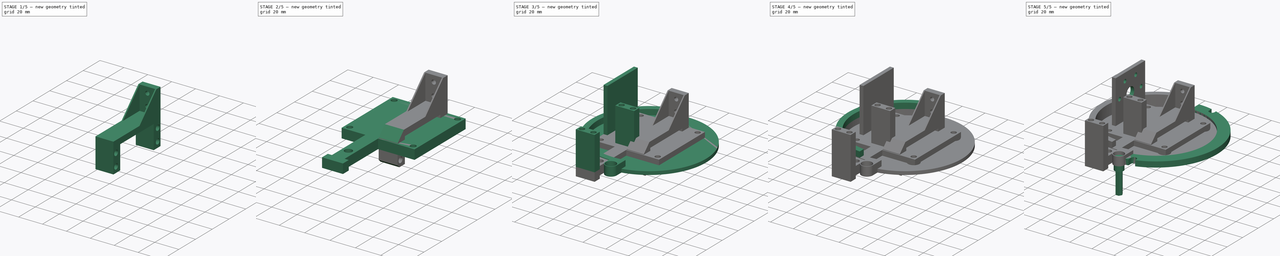
[diagram: build sequence overview — one tinted view per stage of 5, left to right]
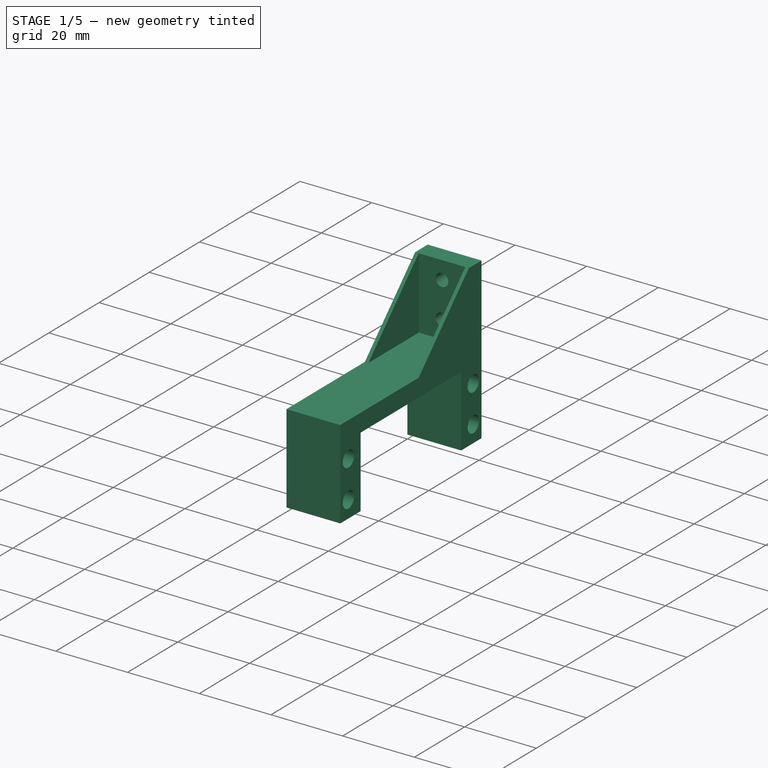
[diagram: stage 1 of 5 — iso view after this stage's code; geometry added in this stage tinted green]
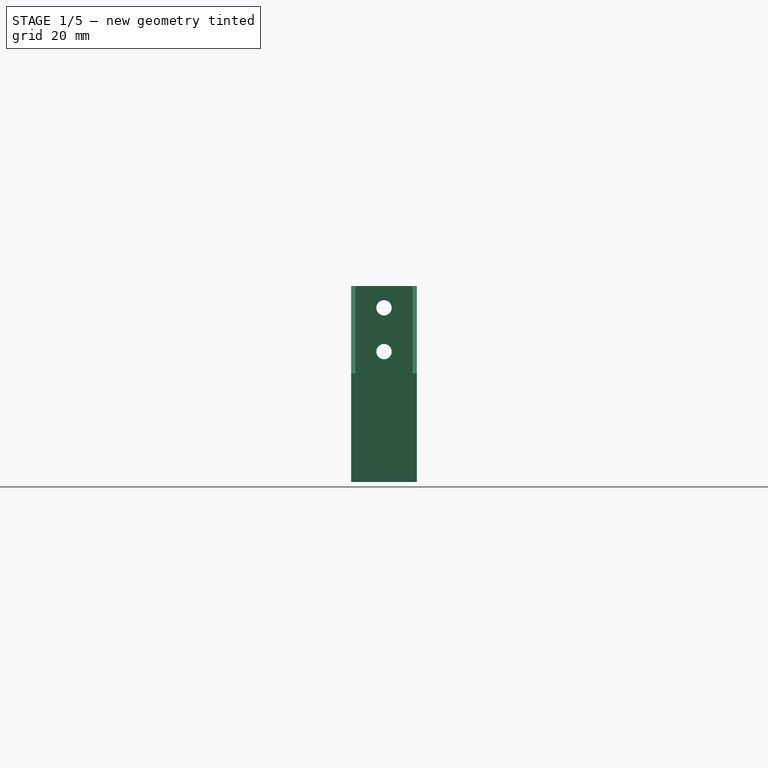
[diagram: stage 1 of 5 — front view after this stage's code; geometry added in this stage tinted green]
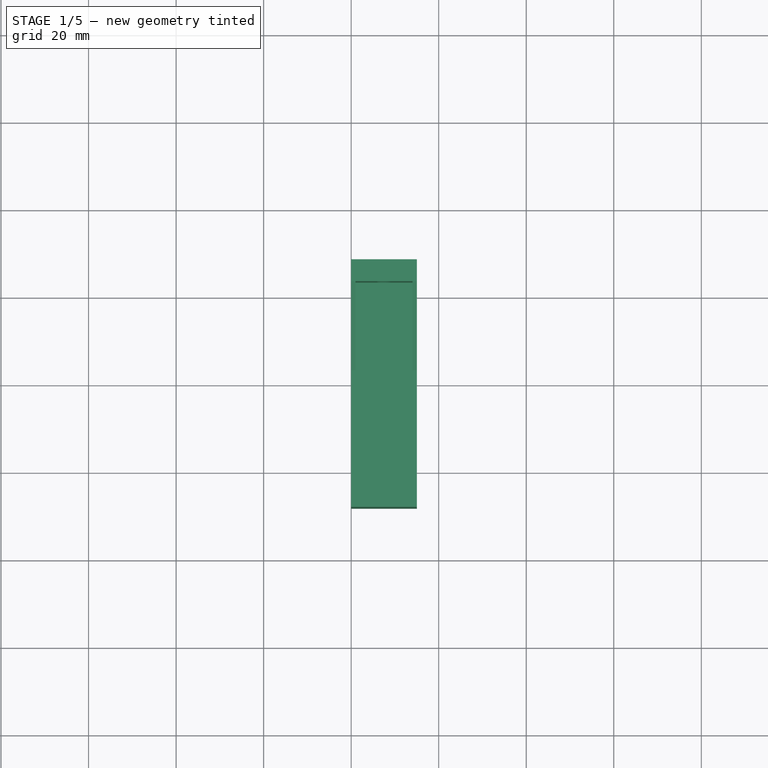
[diagram: stage 1 of 5 — top view after this stage's code; geometry added in this stage tinted green]
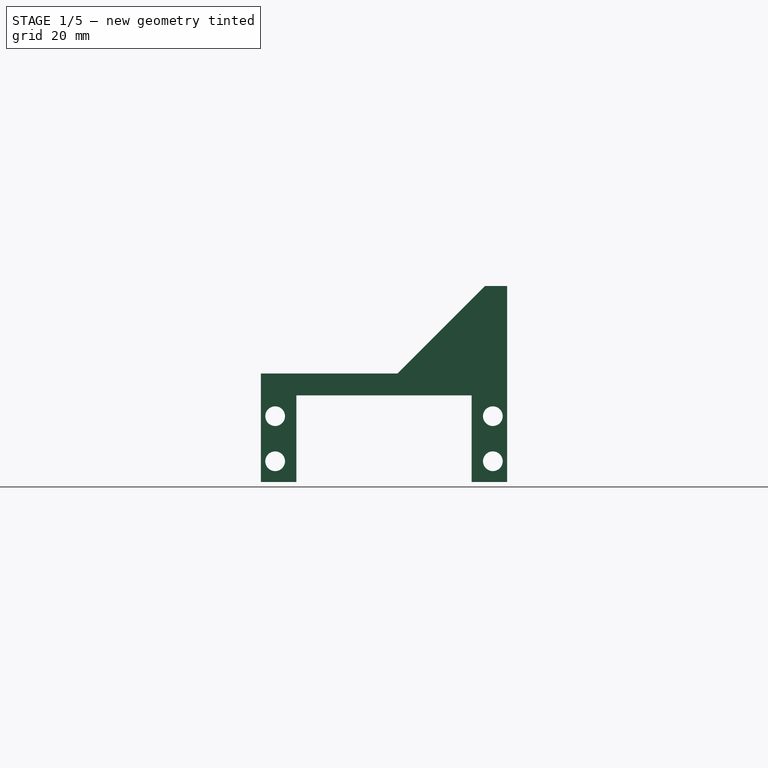
[diagram: stage 1 of 5 — right view after this stage's code; geometry added in this stage tinted green]
FCSTD DOCUMENT  (FreeCAD 0.20R6_voidlinux)
Label: grip
License: All rights reserved
LicenseURL: http://en.wikipedia.org/wiki/All_rights_reserved
objects: Sketcher::SketchObject×18, PartDesign::Pad×11, Part::Feature×9, PartDesign::Pocket×7, PartDesign::Body×4, App::LinkGroup×3, PartDesign::Chamfer×3, App::Part×1
note: 73 computed .brp shape members not serialized (recipe doc carries the construction recipe); baked Part::Feature solids carry a one-line shape summary decoded from their .brp

FEATURE [PartDesign::Body] Body002  label="Mount"
  Group = -> [Sketch014,Sketch015,Pad007,Pad008,Sketch016,Pad010,Sketch017,Pocket]
  Origin = -> Origin003
  Placement = pos=(0,0,0) rot=(0,1,0;3.14159rad)
  Tip = -> Pocket
FEATURE [Sketcher::SketchObject] Sketch019  label="RobotMountBaseSketch"
  FullyConstrained = true
  MapMode = 5
  Placement = pos=(0,0,0) rot=(0.57735,0.57735,0.57735;2.0944rad)
  Support = -> [YZ_Plane004]
  sketch-geometry (42):
    g0: LineSegment StartX=20.02 StartY=-9.9 StartZ=0 EndX=20.02 EndY=9.9 EndZ=0
    g1: LineSegment StartX=20.02 StartY=9.9 StartZ=0 EndX=-20.02 EndY=9.9 EndZ=0
    g2: LineSegment StartX=-20.02 StartY=9.9 StartZ=0 EndX=-20.02 EndY=-9.9 EndZ=0
    g3: LineSegment StartX=-20.02 StartY=-9.9 StartZ=0 EndX=20.02 EndY=-9.9 EndZ=0
    g4: GeomPoint X=0 Y=0 Z=0
    g5: LineSegment StartX=-20.02 StartY=-9.9 StartZ=0 EndX=-28.12 EndY=-9.9 EndZ=0
    g6: LineSegment StartX=20.02 StartY=-9.9 StartZ=0 EndX=28.12 EndY=-9.9 EndZ=0
    g7: LineSegment StartX=-20.02 StartY=-9.9 StartZ=0 EndX=-20.02 EndY=9.9 EndZ=0
    g8: LineSegment StartX=-20.02 StartY=9.9 StartZ=0 EndX=20.02 EndY=9.9 EndZ=0
    g9: LineSegment StartX=20.02 StartY=9.9 StartZ=0 EndX=20.02 EndY=-9.9 EndZ=0
    g10: LineSegment StartX=-20.02 StartY=9.9 StartZ=0 EndX=-20.02 EndY=14.9 EndZ=0
    g11: LineSegment StartX=-20.02 StartY=14.9 StartZ=0 EndX=-28.12 EndY=14.9 EndZ=0
    g12: LineSegment StartX=-28.12 StartY=-9.9 StartZ=0 EndX=-28.12 EndY=14.9 EndZ=0
    g13: LineSegment StartX=-20.02 StartY=14.9 StartZ=0 EndX=28.12 EndY=14.9 EndZ=0
    g14: LineSegment StartX=28.12 StartY=-9.9 StartZ=0 EndX=28.12 EndY=14.9 EndZ=0
    g15: GeomPoint X=23.12 Y=14.9 Z=0
    g16: LineSegment StartX=28.12 StartY=14.9 StartZ=0 EndX=28.12 EndY=34.9 EndZ=0
    g17: LineSegment StartX=28.12 StartY=34.9 StartZ=0 EndX=23.12 EndY=34.9 EndZ=0
    g18: LineSegment StartX=28.12 StartY=-9.9 StartZ=0 EndX=28.12 EndY=34.9 EndZ=0
    g19: LineSegment StartX=23.12 StartY=14.9 StartZ=0 EndX=23.12 EndY=34.9 EndZ=0
    g20: LineSegment StartX=23.12 StartY=34.9 StartZ=0 EndX=3.12 EndY=34.9 EndZ=0
    g21: LineSegment StartX=3.12 StartY=34.9 StartZ=0 EndX=3.12 EndY=14.9 EndZ=0
    g22: LineSegment StartX=-28.12 StartY=14.9 StartZ=0 EndX=3.12 EndY=14.9 EndZ=0
    g23: LineSegment StartX=-24.87 StartY=-9.9 StartZ=0 EndX=-24.87 EndY=-7.4 EndZ=0
    g24: LineSegment StartX=-24.87 StartY=-7.4 StartZ=0 EndX=-28.12 EndY=-7.4 EndZ=0
    g25: LineSegment StartX=-24.87 StartY=-7.4 StartZ=0 EndX=-24.87 EndY=-5.15 EndZ=0
    g26: LineSegment StartX=-24.87 StartY=-5.15 StartZ=0 EndX=-24.87 EndY=-2.9 EndZ=0
    g27: Circle CenterX=-24.87 CenterY=-5.15 CenterZ=0 NormalX=0 NormalY=0 NormalZ=1 AngleXU=0 Radius=2.25
    g28: LineSegment StartX=-20.02 StartY=9.9 StartZ=0 EndX=-28.12 EndY=9.9 EndZ=0
    g29: LineSegment StartX=20.02 StartY=9.9 StartZ=0 EndX=28.12 EndY=9.9 EndZ=0
    g30: LineSegment StartX=-24.87 StartY=9.9 StartZ=0 EndX=-24.87 EndY=7.4 EndZ=0
    g31: LineSegment StartX=-24.87 StartY=7.4 StartZ=0 EndX=-28.12 EndY=7.4 EndZ=0
    g32: LineSegment StartX=-24.87 StartY=7.4 StartZ=0 EndX=-24.87 EndY=5.15 EndZ=0
    g33: Circle CenterX=-24.87 CenterY=5.15 CenterZ=0 NormalX=0 NormalY=0 NormalZ=1 AngleXU=0 Radius=2.25
    g34: LineSegment StartX=24.87 StartY=9.9 StartZ=0 EndX=24.87 EndY=7.4 EndZ=0
    g35: LineSegment StartX=24.87 StartY=7.4 StartZ=0 EndX=28.12 EndY=7.4 EndZ=0
    g36: LineSegment StartX=24.87 StartY=-9.9 StartZ=0 EndX=24.87 EndY=-7.4 EndZ=0
    g37: LineSegment StartX=24.87 StartY=-7.4 StartZ=0 EndX=28.12 EndY=-7.4 EndZ=0
    g38: LineSegment StartX=24.87 StartY=-7.4 StartZ=0 EndX=24.87 EndY=-5.15 EndZ=0
    g39: Circle CenterX=24.87 CenterY=-5.15 CenterZ=0 NormalX=0 NormalY=0 NormalZ=1 AngleXU=0 Radius=2.25
    g40: LineSegment StartX=24.87 StartY=7.4 StartZ=0 EndX=24.87 EndY=5.15 EndZ=0
    g41: Circle CenterX=24.87 CenterY=5.15 CenterZ=0 NormalX=0 NormalY=0 NormalZ=1 AngleXU=0 Radius=2.25
  constraints (114):
    c: Coincident(g0,g1)
    c: Coincident(g1,g2)
    c: Coincident(g2,g3)
    c: Coincident(g3,g0)
    c: Horizontal(g1)
    c: Horizontal(g3)
    c: Vertical(g0)
    c: Vertical(g2)
    c: Symmetric(g1,g0,g4)
    c: Coincident(g4,g-1)
    c: Distance(g1) = 40.04
    c: Distance(g0) = 19.8
    c: Coincident(g5,g2)
    c: Horizontal(g5)
    c: Distance(g5) = 8.1
    c: Coincident(g6,g0)
    c: Horizontal(g6)
    c: Equal(g6,g5)
    c: Coincident(g7,g5)
    c: Coincident(g7,g1)
    c: Coincident(g8,g7)
    c: Coincident(g8,g0)
    c: Coincident(g9,g8)
    c: Coincident(g9,g6)
    c: Coincident(g10,g7)
    c: Vertical(g10)
    c: Distance(g10) = 5
    c: Coincident(g11,g10)
    c: Horizontal(g11)
    c: Coincident(g12,g5)
    c: Vertical(g12)
    c: Coincident(g12,g11)
    c: Coincident(g13,g10)
    c: Horizontal(g13)
    c: Coincident(g14,g6)
    c: Vertical(g14)
    c: Coincident(g13,g14)
    c: PointOnObject(g15,g13)
    c: Distance(g15,g13) = 5
    c: Coincident(g16,g13)
    c: Vertical(g16)
    c: Distance(g16) = 20
    c: Coincident(g17,g16)
    c: Horizontal(g17)
    c: Coincident(g18,g6)
    c: Coincident(g18,g17)
    c: Coincident(g19,g15)
    c: Vertical(g19)
    c: Coincident(g19,g17)
    c: Coincident(g20,g17)
    c: Horizontal(g20)
    c: Equal(g20,g19)
    c: Coincident(g21,g20)
    c: PointOnObject(g21,g13)
    c: Vertical(g21)
    c: Coincident(g22,g12)
    c: Coincident(g22,g21)
    c: PointOnObject(g23,g5)
    c: Vertical(g23)
    c: Coincident(g24,g23)
    c: PointOnObject(g24,g12)
    c: Horizontal(g24)
    c: Distance(g24) = 3.25
    c: Distance(g23) = 2.5
    c: Coincident(g25,g23)
    c: Vertical(g25)
    c: Coincident(g26,g25)
    c: Vertical(g26)
    c: Equal(g26,g25)
    c: Distance(g23,g26) = 4.5
    c: Coincident(g27,g25)
    c: PointOnObject(g26,g27)
    c: Coincident(g28,g7)
    c: PointOnObject(g28,g12)
    c: Horizontal(g28)
    c: Coincident(g29,g8)
    c: PointOnObject(g29,g18)
    c: Horizontal(g29)
    c: Vertical(g30)
    c: Coincident(g31,g30)
    c: PointOnObject(g31,g12)
    c: Horizontal(g31)
    c: Equal(g31,g24)
    c: Equal(g30,g23)
    c: PointOnObject(g30,g28)
    c: Coincident(g32,g30)
    c: Vertical(g32)
    c: Equal(g32,g25)
    c: Coincident(g33,g32)
    c: PointOnObject(g30,g33)
    c: PointOnObject(g34,g29)
    c: Vertical(g34)
    c: Coincident(g35,g34)
    c: PointOnObject(g35,g18)
    c: Horizontal(g35)
    c: Equal(g35,g24)
    c: Equal(g34,g23)
    c: PointOnObject(g36,g6)
    c: Vertical(g36)
    c: Coincident(g37,g36)
    c: PointOnObject(g37,g18)
    c: Horizontal(g37)
    c: Equal(g37,g24)
    c: Equal(g23,g36)
    c: Coincident(g38,g36)
    c: Vertical(g38)
    c: Equal(g38,g25)
    c: Coincident(g39,g38)
    c: PointOnObject(g36,g39)
    c: Coincident(g40,g34)
    c: Vertical(g40)
    c: Equal(g40,g25)
    c: Coincident(g41,g40)
    c: PointOnObject(g34,g41)
FEATURE [PartDesign::Pad] Pad011  label="RobotMountBase"
  Direction = (1,-2e-16,3e-16)
  Length = 15
  Length2 = 10
  Placement = pos=(0,0,0) rot=(0.57735,0.57735,0.57735;2.0944rad)
  Profile = -> Sketch019
  ReferenceAxis = -> Sketch019 [N_Axis]
  Type = 0
FEATURE [Sketcher::SketchObject] Sketch020  label="RobotMountBoltInsetSketch"
  FullyConstrained = true
  MapMode = 5
  Placement = pos=(1.4e-15,3.12,-7e-16) rot=(-0.57735,-0.57735,0.57735;4.18879rad)
  Support = -> [Pad011]
  sketch-geometry (8):
    g0: LineSegment StartX=0 StartY=0 StartZ=0 EndX=-9.9 EndY=0 EndZ=0
    g1: LineSegment StartX=0 StartY=0 StartZ=0 EndX=9.9 EndY=0 EndZ=0
    g2: LineSegment StartX=-9.9 StartY=0 StartZ=0 EndX=-14.9 EndY=0 EndZ=0
    g3: LineSegment StartX=-14.9 StartY=0 StartZ=0 EndX=-14.9 EndY=1 EndZ=0
    g4: LineSegment StartX=-14.9 StartY=1 StartZ=0 EndX=-34.9 EndY=1 EndZ=0
    g5: LineSegment StartX=-34.9 StartY=1 StartZ=0 EndX=-34.9 EndY=14 EndZ=0
    g6: LineSegment StartX=-34.9 StartY=14 StartZ=0 EndX=-14.9 EndY=14 EndZ=0
    g7: LineSegment StartX=-14.9 StartY=14 StartZ=0 EndX=-14.9 EndY=1 EndZ=0
  constraints (23):
    c: Coincident(g0,g-1)
    c: PointOnObject(g0,g-1)
    c: Coincident(g1,g0)
    c: PointOnObject(g1,g-1)
    c: Equal(g0,g1)
    c: Distance(g0,g1) = 19.8
    c: Coincident(g2,g0)
    c: PointOnObject(g2,g-1)
    c: Distance(g2) = 5
    c: Coincident(g3,g2)
    c: Vertical(g3)
    c: Distance(g3) = 1
    c: Coincident(g4,g5)
    c: Coincident(g5,g6)
    c: Coincident(g6,g7)
    c: Coincident(g7,g4)
    c: Horizontal(g4)
    c: Horizontal(g6)
    c: Vertical(g5)
    c: Vertical(g7)
    c: Coincident(g4,g3)
    c: Distance(g4) = 20
    c: Distance(g5) = 13
FEATURE [PartDesign::Pocket] Pocket005  label="RobotMountBoltInset"
  BaseFeature = -> Pad011
  Direction = (4e-16,1,-2e-16)
  Length = 20
  Length2 = 5
  Placement = pos=(0,0,0) rot=(0.57735,0.57735,0.57735;2.0944rad)
  Profile = -> Sketch020
  ReferenceAxis = -> Sketch020 [N_Axis]
  Type = 0
FEATURE [PartDesign::Chamfer] Chamfer  label="RobotMountChamfer"
  Angle = 45
  Base = -> Pocket005 [Edge53,Edge41]
  BaseFeature = -> Pocket005
  ChamferType = 0
  FlipDirection = false
  Placement = pos=(0,0,0) rot=(0.57735,0.57735,0.57735;2.0944rad)
  Size = 19.99
  Size2 = 1
  SupportTransform = false
  UseAllEdges = false
FEATURE [Sketcher::SketchObject] Sketch021  label="RobotMountBoltHolesSketch"
  FullyConstrained = true
  MapMode = 5
  Placement = pos=(1.24e-14,28.12,-6.2e-15) rot=(0.57735,0.57735,0.57735;4.18879rad)
  Support = -> [Chamfer]
  sketch-geometry (19):
    g0: LineSegment StartX=0 StartY=0 StartZ=0 EndX=-9.9 EndY=0 EndZ=0
    g1: LineSegment StartX=0 StartY=0 StartZ=0 EndX=9.9 EndY=0 EndZ=0
    g2: LineSegment StartX=9.9 StartY=0 StartZ=0 EndX=14.9 EndY=0 EndZ=0
    g3: LineSegment StartX=14.9 StartY=0 StartZ=0 EndX=34.9 EndY=0 EndZ=0
    g4: LineSegment StartX=34.9 StartY=0 StartZ=0 EndX=34.9 EndY=7.5 EndZ=0
    g5: LineSegment StartX=34.9 StartY=7.5 StartZ=0 EndX=34.9 EndY=15 EndZ=0
    g6: LineSegment StartX=14.9 StartY=0 StartZ=0 EndX=14.9 EndY=7.5 EndZ=0
    g7: LineSegment StartX=14.9 StartY=7.5 StartZ=0 EndX=14.9 EndY=15 EndZ=0
    g8: LineSegment StartX=14.9 StartY=15 StartZ=0 EndX=19.9 EndY=15 EndZ=0
    g9: LineSegment StartX=19.9 StartY=15 StartZ=0 EndX=24.9 EndY=15 EndZ=0
    g10: LineSegment StartX=24.9 StartY=15 StartZ=0 EndX=29.9 EndY=15 EndZ=0
    g11: LineSegment StartX=29.9 StartY=15 StartZ=0 EndX=34.9 EndY=15 EndZ=0
    g12: LineSegment StartX=19.9 StartY=15 StartZ=0 EndX=19.9 EndY=7.5 EndZ=0
    g13: LineSegment StartX=29.9 StartY=15 StartZ=0 EndX=29.9 EndY=7.5 EndZ=0
    g14: LineSegment StartX=19.9 StartY=7.5 StartZ=0 EndX=21.65 EndY=7.5 EndZ=0
    g15: LineSegment StartX=19.9 StartY=7.5 StartZ=0 EndX=18.15 EndY=7.5 EndZ=0
    g16: LineSegment StartX=29.9 StartY=7.5 StartZ=0 EndX=28.15 EndY=7.5 EndZ=0
    g17: Circle CenterX=19.9 CenterY=7.5 CenterZ=0 NormalX=0 NormalY=0 NormalZ=1 AngleXU=0 Radius=1.75
    g18: Circle CenterX=29.9 CenterY=7.5 CenterZ=0 NormalX=0 NormalY=0 NormalZ=1 AngleXU=0 Radius=1.75
  constraints (54):
    c: Coincident(g0,g-1)
    c: Horizontal(g0)
    c: Coincident(g1,g0)
    c: PointOnObject(g1,g-1)
    c: Equal(g1,g0)
    c: Distance(g0,g1) = 19.8
    c: Coincident(g2,g1)
    c: PointOnObject(g2,g-1)
    c: Distance(g2) = 5
    c: Coincident(g3,g2)
    c: PointOnObject(g3,g-1)
    c: Distance(g3) = 20
    c: Coincident(g4,g3)
    c: Vertical(g4)
    c: Coincident(g5,g4)
    c: Vertical(g5)
    c: Equal(g5,g4)
    c: Distance(g3,g5) = 15
    c: Coincident(g6,g2)
    c: Vertical(g6)
    c: Coincident(g7,g6)
    c: Vertical(g7)
    c: Equal(g6,g4)
    c: Equal(g7,g5)
    c: Coincident(g8,g7)
    c: Horizontal(g8)
    c: Coincident(g9,g8)
    c: Horizontal(g9)
    c: Coincident(g10,g9)
    c: Horizontal(g10)
    c: Coincident(g11,g10)
    c: Coincident(g11,g5)
    c: Equal(g9,g11)
    c: Equal(g8,g9)
    c: Equal(g9,g10)
    c: Coincident(g12,g8)
    c: Vertical(g12)
    c: Equal(g12,g7)
    c: Coincident(g13,g10)
    c: Vertical(g13)
    c: Equal(g13,g5)
    c: Coincident(g14,g12)
    c: Horizontal(g14)
    c: Coincident(g15,g12)
    c: Horizontal(g15)
    c: Equal(g15,g14)
    c: Distance(g15,g14) = 3.5
    c: Coincident(g16,g13)
    c: Horizontal(g16)
    c: Equal(g16,g14)
    c: Coincident(g17,g12)
    c: PointOnObject(g14,g17)
    c: Coincident(g18,g13)
    c: PointOnObject(g16,g18)
FEATURE [PartDesign::Pocket] Pocket006  label="RobotMountBoltHoles"
  BaseFeature = -> Chamfer
  Direction = (-4e-16,-1,6e-16)
  Length = 5
  Length2 = 5
  Placement = pos=(0,0,0) rot=(0.57735,0.57735,0.57735;2.0944rad)
  Profile = -> Sketch021
  ReferenceAxis = -> Sketch021 [N_Axis]
  Type = 0
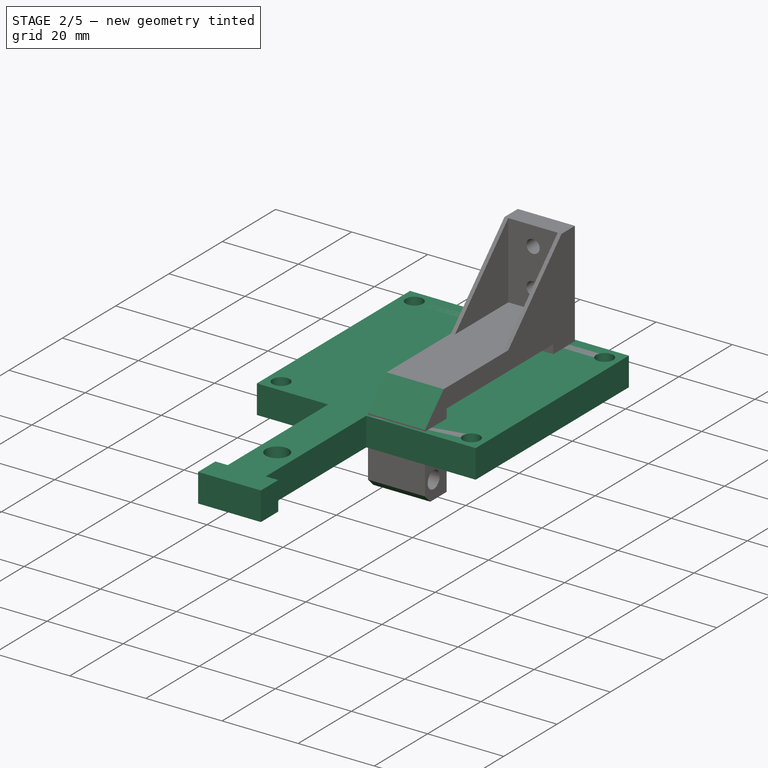
[diagram: stage 2 of 5 — iso view after this stage's code; geometry added in this stage tinted green]
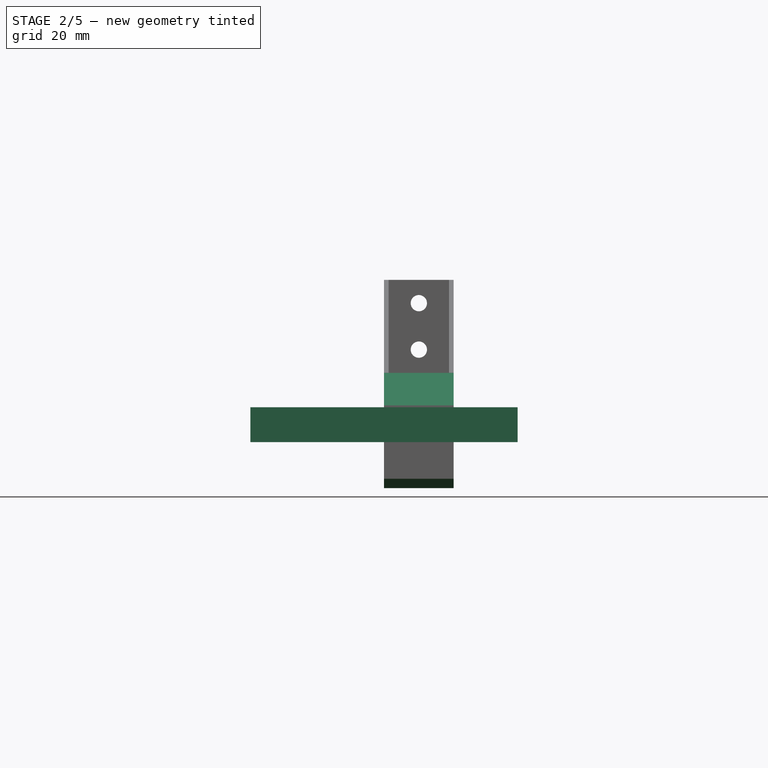
[diagram: stage 2 of 5 — front view after this stage's code; geometry added in this stage tinted green]
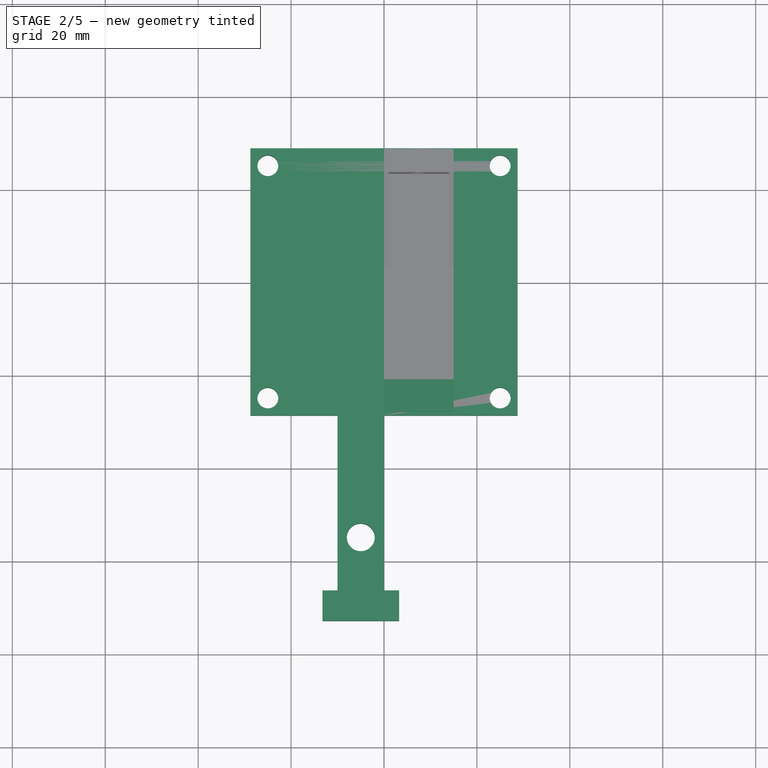
[diagram: stage 2 of 5 — top view after this stage's code; geometry added in this stage tinted green]
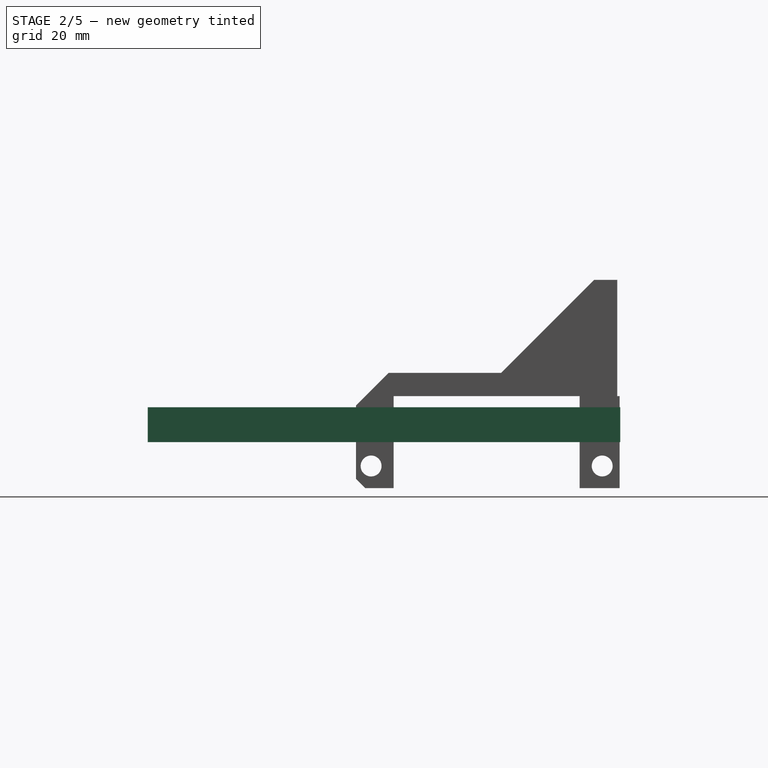
[diagram: stage 2 of 5 — right view after this stage's code; geometry added in this stage tinted green]
FEATURE [Sketcher::SketchObject] Sketch014  label="MountBaseSketch"
  FullyConstrained = true
  MapMode = 5
  Support = -> [XY_Plane003]
  sketch-geometry (52):
    g0: LineSegment StartX=0 StartY=0 StartZ=0 EndX=25 EndY=0 EndZ=0
    g1: LineSegment StartX=0 StartY=0 StartZ=0 EndX=-25 EndY=0 EndZ=0
    g2: GeomPoint X=0 Y=0 Z=0
    g3: LineSegment StartX=0 StartY=-28.75 StartZ=0 EndX=0 EndY=-55 EndZ=0
    g4: LineSegment StartX=0 StartY=-55 StartZ=0 EndX=-5 EndY=-55 EndZ=0
    g5: LineSegment StartX=-5 StartY=-55 StartZ=0 EndX=-10 EndY=-55 EndZ=0
    g6: LineSegment StartX=0 StartY=-28.75 StartZ=0 EndX=28.75 EndY=-28.75 EndZ=0
    g7: LineSegment StartX=-10 StartY=-55 StartZ=0 EndX=-10 EndY=-28.75 EndZ=0
    g8: LineSegment StartX=-28.75 StartY=-28.75 StartZ=0 EndX=-10 EndY=-28.75 EndZ=0
    g9: LineSegment StartX=-5 StartY=-55 StartZ=0 EndX=-5 EndY=-52 EndZ=0
    g10: Circle CenterX=-5 CenterY=-55 CenterZ=0 NormalX=0 NormalY=0 NormalZ=1 AngleXU=0 Radius=3
    g11: LineSegment StartX=3.25 StartY=-66.44 StartZ=0 EndX=0 EndY=-66.44 EndZ=0
    g12: LineSegment StartX=-13.25 StartY=-72.94 StartZ=0 EndX=3.25 EndY=-72.94 EndZ=0
    g13: LineSegment StartX=-13.25 StartY=-66.44 StartZ=0 EndX=-10 EndY=-66.44 EndZ=0
    g14: LineSegment StartX=-10 StartY=-66.44 StartZ=0 EndX=-10 EndY=-55 EndZ=0
    g15: LineSegment StartX=0 StartY=-66.44 StartZ=0 EndX=0 EndY=-55 EndZ=0
    g16: LineSegment StartX=3.25 StartY=-66.44 StartZ=0 EndX=3.25 EndY=-72.94 EndZ=0
    g17: LineSegment StartX=-13.25 StartY=-66.44 StartZ=0 EndX=-13.25 EndY=-72.94 EndZ=0
    g18: LineSegment StartX=-5 StartY=-55 StartZ=0 EndX=-5 EndY=-58 EndZ=0
    g19: LineSegment StartX=-5 StartY=-58 StartZ=0 EndX=-5 EndY=-66.44 EndZ=0
    g20: LineSegment StartX=-5 StartY=-66.44 StartZ=0 EndX=0 EndY=-66.44 EndZ=0
    g21: LineSegment StartX=-5 StartY=-66.44 StartZ=0 EndX=-10 EndY=-66.44 EndZ=0
    g22: LineSegment StartX=-25 StartY=0 StartZ=0 EndX=-25 EndY=-25 EndZ=0
    g23: LineSegment StartX=-25 StartY=-25 StartZ=0 EndX=-27.25 EndY=-25 EndZ=0
    g24: LineSegment StartX=-25 StartY=-25 StartZ=0 EndX=-22.75 EndY=-25 EndZ=0
    g25: LineSegment StartX=-27.25 StartY=-25 StartZ=0 EndX=-28.75 EndY=-25 EndZ=0
    g26: LineSegment StartX=-22.75 StartY=-25 StartZ=0 EndX=-21.25 EndY=-25 EndZ=0
    g27: Circle CenterX=-25 CenterY=-25 CenterZ=0 NormalX=0 NormalY=0 NormalZ=1 AngleXU=0 Radius=2.25
    g28: LineSegment StartX=-25 StartY=0 StartZ=0 EndX=-25 EndY=25 EndZ=0
    g29: LineSegment StartX=25 StartY=0 StartZ=0 EndX=25 EndY=25 EndZ=0
    g30: LineSegment StartX=25 StartY=0 StartZ=0 EndX=25 EndY=-25 EndZ=0
    g31: LineSegment StartX=25 StartY=25 StartZ=0 EndX=27.25 EndY=25 EndZ=0
    g32: LineSegment StartX=27.25 StartY=25 StartZ=0 EndX=28.75 EndY=25 EndZ=0
    g33: Circle CenterX=25 CenterY=25 CenterZ=0 NormalX=0 NormalY=0 NormalZ=1 AngleXU=0 Radius=2.25
    g34: LineSegment StartX=25 StartY=25 StartZ=0 EndX=25 EndY=27.25 EndZ=0
    g35: LineSegment StartX=25 StartY=27.25 StartZ=0 EndX=25 EndY=28.75 EndZ=0
    g36: LineSegment StartX=-25 StartY=-25 StartZ=0 EndX=-25 EndY=-27.25 EndZ=0
    g37: LineSegment StartX=-25 StartY=-27.25 StartZ=0 EndX=-25 EndY=-28.75 EndZ=0
    g38: LineSegment StartX=25 StartY=-25 StartZ=0 EndX=27.25 EndY=-25 EndZ=0
    g39: Circle CenterX=25 CenterY=-25 CenterZ=0 NormalX=0 NormalY=0 NormalZ=1 AngleXU=0 Radius=2.25
    g40: LineSegment StartX=-25 StartY=25 StartZ=0 EndX=-27.25 EndY=25 EndZ=0
    g41: Circle CenterX=-25 CenterY=25 CenterZ=0 NormalX=0 NormalY=0 NormalZ=1 AngleXU=0 Radius=2.25
    g42: LineSegment StartX=0 StartY=0 StartZ=0 EndX=0 EndY=-28.75 EndZ=0
    g43: LineSegment StartX=-10 StartY=-28.75 StartZ=0 EndX=0 EndY=-28.75 EndZ=0
    g44: LineSegment StartX=-25 StartY=0 StartZ=0 EndX=-27.25 EndY=0 EndZ=0
    g45: LineSegment StartX=-28.75 StartY=0 StartZ=0 EndX=-27.25 EndY=0 EndZ=0
    g46: LineSegment StartX=28.75 StartY=28.75 StartZ=0 EndX=28.75 EndY=-28.75 EndZ=0
    g47: LineSegment StartX=0 StartY=0 StartZ=0 EndX=0 EndY=25 EndZ=0
    g48: LineSegment StartX=0 StartY=25 StartZ=0 EndX=0 EndY=27.25 EndZ=0
    g49: LineSegment StartX=0 StartY=27.25 StartZ=0 EndX=0 EndY=28.75 EndZ=0
    g50: LineSegment StartX=-28.75 StartY=28.75 StartZ=0 EndX=28.75 EndY=28.75 EndZ=0
    g51: LineSegment StartX=-28.75 StartY=28.75 StartZ=0 EndX=-28.75 EndY=-28.75 EndZ=0
  constraints (145):
    c: Coincident(g0,g-1)
    c: PointOnObject(g0,g-1)
    c: Coincident(g1,g0)
    c: PointOnObject(g1,g-1)
    c: Equal(g1,g0)
    c: Distance(g1,g0) = 50
    c: Coincident(g2,g0)
    c: PointOnObject(g49,g-2)
    c: PointOnObject(g45,g-1)
    c: PointOnObject(g3,g-2)
    c: Distance(g3,g0) = 55
    c: Coincident(g4,g3)
    c: Horizontal(g4)
    c: Distance(g4,g3) = 5
    c: Coincident(g5,g4)
    c: Horizontal(g5)
    c: Equal(g5,g4)
    c: Coincident(g6,g3)
    c: Horizontal(g6)
    c: Coincident(g7,g5)
    c: Vertical(g7)
    c: Coincident(g8,g7)
    c: Vertical(g9)
    c: PointOnObject(g9,g10)
    c: Horizontal(g11)
    c: Horizontal(g12)
    c: Horizontal(g13)
    c: Coincident(g14,g7)
    c: Vertical(g14)
    c: Coincident(g15,g3)
    c: Vertical(g15)
    c: Coincident(g4,g9)
    c: Coincident(g4,g10)
    c: Distance(g10,g9) = 3
    c: Distance(g11,g3) = 11.44
    c: Equal(g15,g14)
    c: Coincident(g16,g11)
    c: Coincident(g16,g12)
    c: Vertical(g16)
    c: Equal(g13,g11)
    c: Coincident(g17,g13)
    c: Coincident(g17,g12)
    c: Vertical(g17)
    c: Equal(g17,g16)
    c: Distance(g11,g12) = 6.5
    c: Distance(g12,g12) = 16.5
    c: Coincident(g14,g13)
    c: Coincident(g18,g10)
    c: PointOnObject(g18,g10)
    c: Vertical(g18)
    c: Coincident(g19,g18)
    c: Vertical(g19)
    c: Coincident(g20,g19)
    c: Coincident(g20,g11)
    c: Horizontal(g20)
    c: Coincident(g21,g19)
    c: Coincident(g21,g13)
    c: Equal(g21,g20)
    c: Coincident(g22,g1)
    c: Vertical(g22)
    c: Coincident(g23,g22)
    c: Horizontal(g23)
    c: Coincident(g24,g22)
    c: Horizontal(g24)
    c: Equal(g24,g23)
    c: Distance(g23,g24) = 4.5
    c: Coincident(g25,g23)
    c: Horizontal(g25)
    c: Coincident(g26,g24)
    c: Horizontal(g26)
    c: Equal(g26,g25)
    c: Distance(g25,g26) = 7.5
    c: Coincident(g27,g22)
    c: PointOnObject(g24,g27)
    c: Equal(g22,g1)
    c: Coincident(g28,g1)
    c: Vertical(g28)
    c: Coincident(g29,g0)
    c: Vertical(g29)
    c: Coincident(g30,g0)
    c: Vertical(g30)
    c: Equal(g30,g0)
    c: Equal(g29,g0)
    c: Equal(g28,g1)
    c: Coincident(g31,g29)
    c: Horizontal(g31)
    c: Equal(g31,g24)
    c: Coincident(g32,g31)
    c: Horizontal(g32)
    c: Equal(g32,g26)
    c: Coincident(g33,g29)
    c: PointOnObject(g31,g33)
    c: Coincident(g34,g33)
    c: PointOnObject(g34,g33)
    c: Vertical(g34)
    c: Coincident(g35,g34)
    c: Vertical(g35)
    c: Equal(g35,g32)
    c: Coincident(g36,g27)
    c: PointOnObject(g36,g27)
    c: Vertical(g36)
    c: Coincident(g37,g36)
    c: PointOnObject(g37,g8)
    c: Vertical(g37)
    c: Equal(g37,g25)
    c: Coincident(g38,g30)
    c: Horizontal(g38)
    c: Equal(g38,g24)
    c: Coincident(g39,g30)
    c: PointOnObject(g38,g39)
    c: Coincident(g40,g28)
    c: Horizontal(g40)
    c: Equal(g40,g24)
    c: Coincident(g41,g28)
    c: PointOnObject(g40,g41)
    c: Coincident(g42,g0)
    c: Coincident(g42,g3)
    c: Vertical(g42)
    c: Coincident(g43,g7)
    c: Coincident(g43,g3)
    c: Coincident(g44,g1)
    c: PointOnObject(g44,g-1)
    c: Equal(g44,g23)
    c: Coincident(g45,g44)
    c: Equal(g45,g25)
    c: Coincident(g46,g6)
    c: Vertical(g46)
    c: PointOnObject(g32,g46)
    c: Coincident(g47,g0)
    c: PointOnObject(g47,g-2)
    c: Equal(g47,g29)
    c: Coincident(g48,g47)
    c: PointOnObject(g48,g-2)
    c: Equal(g48,g34)
    c: Coincident(g49,g48)
    c: Equal(g49,g32)
    c: Coincident(g50,g46)
    c: Horizontal(g50)
    c: Equal(g50,g46)
    c: Coincident(g51,g50)
    c: Coincident(g51,g8)
    c: Vertical(g51)
    c: PointOnObject(g25,g51)
    c: Perpendicular(g8,g51)
    c: Equal(g51,g46)
FEATURE [PartDesign::Pad] Pad007  label="MountBase"
  Direction = (0,0,1)
  Length = 7.5
  Length2 = 10
  Profile = -> Sketch014
  ReferenceAxis = -> Sketch014 [N_Axis]
  Type = 0
FEATURE [Sketcher::SketchObject] Sketch022  label="RobotMountGuideSketch"
  FullyConstrained = true
  MapMode = 5
  Placement = pos=(1.24e-14,28.12,-6.2e-15) rot=(0.57735,0.57735,0.57735;4.18879rad)
  Support = -> [Pocket006]
  sketch-geometry (11):
    g0: LineSegment StartX=0 StartY=0 StartZ=0 EndX=-9.9 EndY=0 EndZ=0
    g1: LineSegment StartX=0 StartY=0 StartZ=0 EndX=9.9 EndY=0 EndZ=0
    g2: LineSegment StartX=-9.9 StartY=0 StartZ=0 EndX=-9.9 EndY=7.5 EndZ=0
    g3: LineSegment StartX=-9.9 StartY=7.5 StartZ=0 EndX=-9.9 EndY=15 EndZ=0
    g4: GeomPoint X=-9.9 Y=6.25 Z=0
    g5: LineSegment StartX=9.9 StartY=0 StartZ=0 EndX=9.9 EndY=7.5 EndZ=0
    g6: LineSegment StartX=9.9 StartY=7.5 StartZ=0 EndX=9.9 EndY=8.75 EndZ=0
    g7: LineSegment StartX=-9.9 StartY=6.25 StartZ=0 EndX=9.9 EndY=6.25 EndZ=0
    g8: LineSegment StartX=9.9 StartY=6.25 StartZ=0 EndX=9.9 EndY=8.75 EndZ=0
    g9: LineSegment StartX=9.9 StartY=8.75 StartZ=0 EndX=-9.9 EndY=8.75 EndZ=0
    g10: LineSegment StartX=-9.9 StartY=8.75 StartZ=0 EndX=-9.9 EndY=6.25 EndZ=0
  constraints (30):
    c: Coincident(g0,g-1)
    c: PointOnObject(g0,g-1)
    c: Coincident(g1,g0)
    c: PointOnObject(g1,g-1)
    c: Equal(g0,g1)
    c: Distance(g0,g1) = 19.8
    c: Coincident(g2,g0)
    c: Vertical(g2)
    c: Coincident(g3,g2)
    c: Vertical(g3)
    c: Equal(g3,g2)
    c: Distance(g0,g3) = 15
    c: PointOnObject(g4,g2)
    c: Distance(g4,g2) = 1.25
    c: Coincident(g5,g1)
    c: Vertical(g5)
    c: Equal(g2,g5)
    c: Coincident(g6,g5)
    c: Vertical(g6)
    c: Distance(g6) = 1.25
    c: Coincident(g7,g8)
    c: Coincident(g8,g9)
    c: Coincident(g9,g10)
    c: Coincident(g10,g7)
    c: Horizontal(g7)
    c: Horizontal(g9)
    c: Vertical(g8)
    c: Vertical(g10)
    c: Coincident(g7,g4)
    c: Coincident(g8,g6)
FEATURE [PartDesign::Pad] Pad012  label="RobotMountGuide"
  BaseFeature = -> Pocket006
  Direction = (5e-16,1,-9e-16)
  Length = 0.5
  Length2 = 10
  Placement = pos=(0,0,0) rot=(0.57735,0.57735,0.57735;2.0944rad)
  Profile = -> Sketch022
  ReferenceAxis = -> Sketch022 [N_Axis]
  Type = 0
FEATURE [PartDesign::Chamfer] Chamfer001
  Angle = 45
  Base = -> Pad012 [Edge22]
  BaseFeature = -> Pad012
  ChamferType = 0
  FlipDirection = false
  Placement = pos=(0,0,0) rot=(0.57735,0.57735,0.57735;2.0944rad)
  Size = 7
  Size2 = 1
  SupportTransform = false
  UseAllEdges = false
FEATURE [PartDesign::Chamfer] Chamfer002
  Angle = 45
  Base = -> Chamfer001 [Edge27]
  BaseFeature = -> Chamfer001
  ChamferType = 0
  FlipDirection = false
  Placement = pos=(0,0,0) rot=(0.57735,0.57735,0.57735;2.0944rad)
  Size = 2
  Size2 = 1
  SupportTransform = false
  UseAllEdges = false
FEATURE [PartDesign::Body] Body003  label="RobotMount"
  Group = -> [Sketch019,Pad011,Sketch020,Pocket005,Chamfer,Sketch021,Pocket006,Sketch022,Pad012,Chamfer001,Chamfer002]
  Origin = -> Origin004
  Placement = pos=(6.82,12.82,-27.56) rot=(0,1,0;3.14159rad)
  Tip = -> Chamfer002
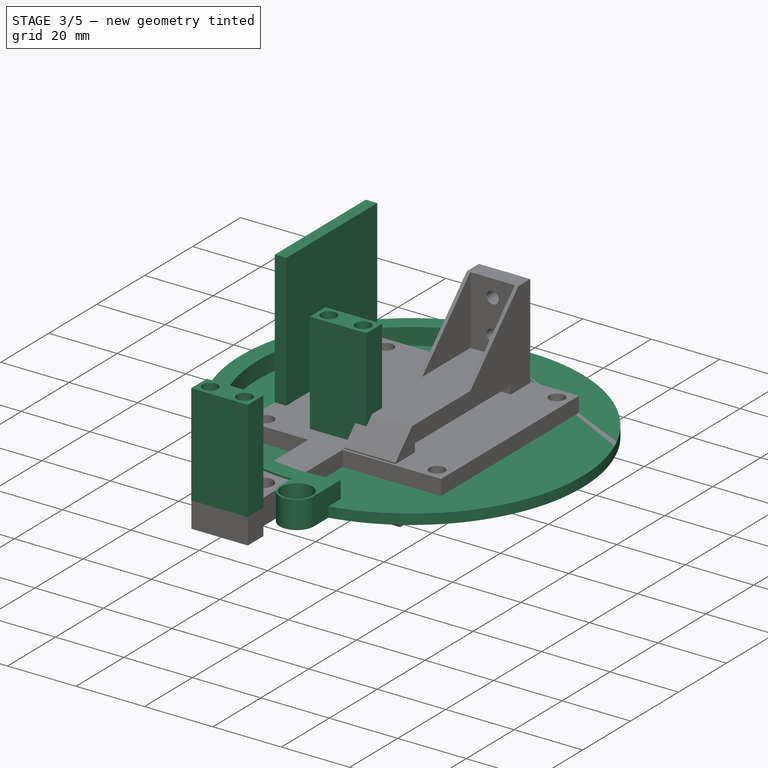
[diagram: stage 3 of 5 — iso view after this stage's code; geometry added in this stage tinted green]
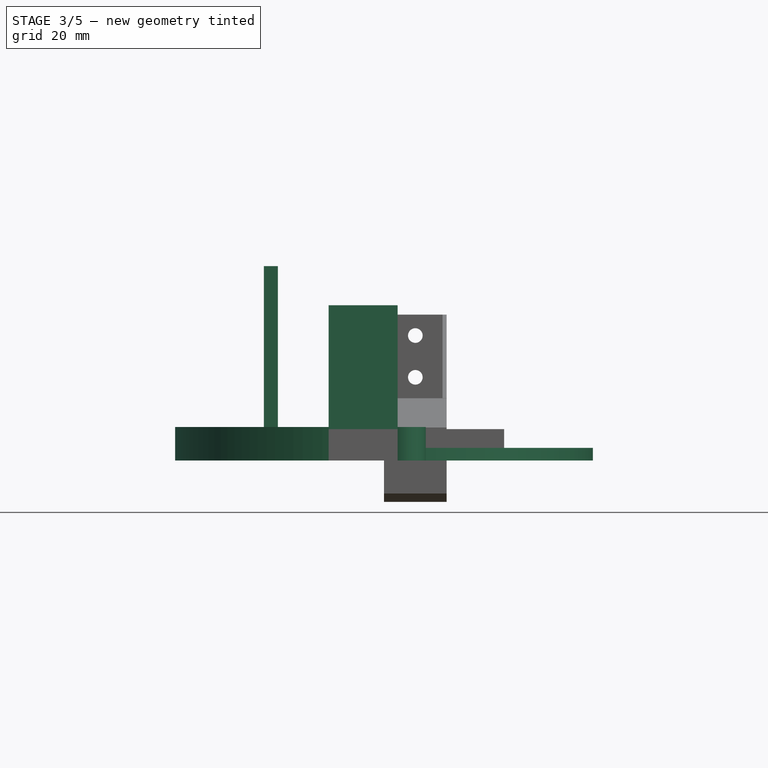
[diagram: stage 3 of 5 — front view after this stage's code; geometry added in this stage tinted green]
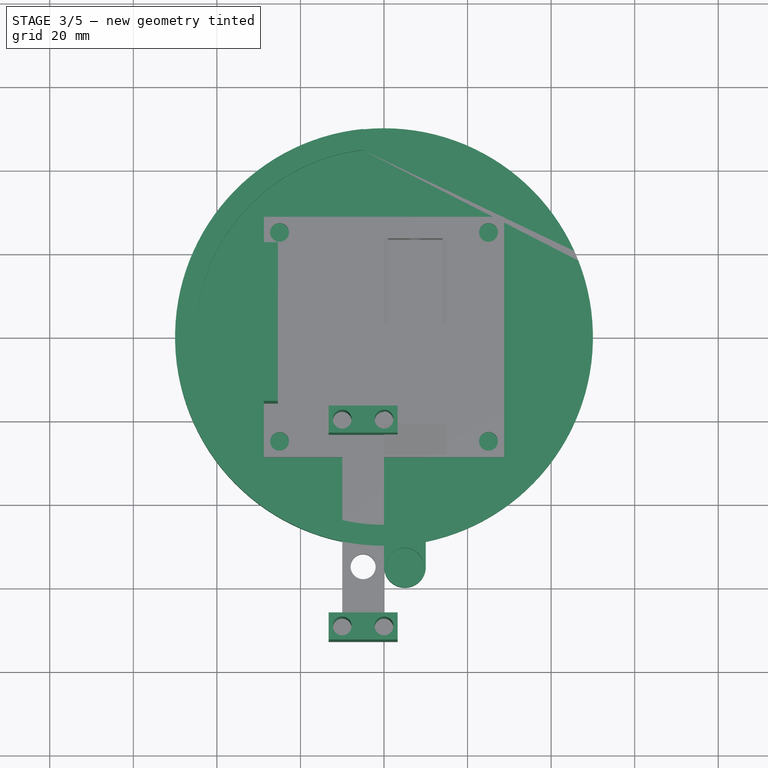
[diagram: stage 3 of 5 — top view after this stage's code; geometry added in this stage tinted green]
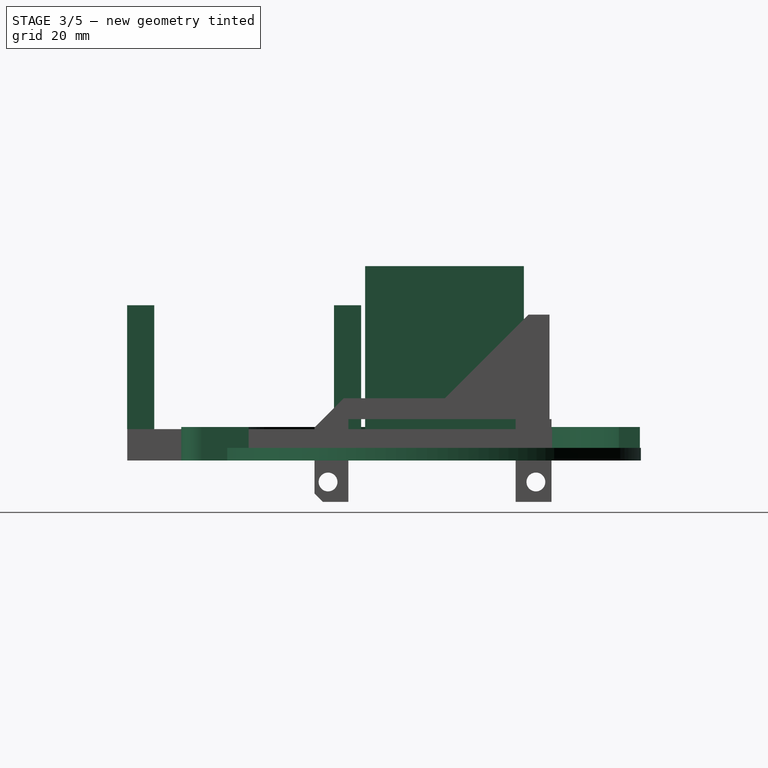
[diagram: stage 3 of 5 — right view after this stage's code; geometry added in this stage tinted green]
FEATURE [Sketcher::SketchObject] Sketch  label="BaseFirstLayerSketch"
  FullyConstrained = true
  MapMode = 5
  Support = -> [XY_Plane]
  sketch-geometry (11):
    g0: LineSegment StartX=0 StartY=0 StartZ=0 EndX=50 EndY=0 EndZ=0
    g1: LineSegment StartX=0 StartY=0 StartZ=0 EndX=-50 EndY=0 EndZ=0
    g2: LineSegment StartX=0 StartY=0 StartZ=0 EndX=-5.062e-13 EndY=-50 EndZ=0
    g3: LineSegment StartX=-5.062e-13 StartY=-50 StartZ=0 EndX=0 EndY=-55 EndZ=0
    g4: LineSegment StartX=0 StartY=-55 StartZ=0 EndX=5 EndY=-55 EndZ=0
    g5: LineSegment StartX=5 StartY=-55 StartZ=0 EndX=10 EndY=-55 EndZ=0
    g6: LineSegment StartX=5 StartY=-55 StartZ=0 EndX=5 EndY=-60 EndZ=0
    g7: Circle CenterX=0 CenterY=0 CenterZ=0 NormalX=0 NormalY=0 NormalZ=1 AngleXU=0 Radius=50
    g8: ArcOfCircle CenterX=5 CenterY=-55 CenterZ=0 NormalX=0 NormalY=0 NormalZ=1 AngleXU=0 Radius=5 StartAngle=3.14159 EndAngle=6.28319
    g9: ArcOfCircle CenterX=-1.6394e-12 CenterY=-1.17423e-11 CenterZ=0 NormalX=0 NormalY=0 NormalZ=1 AngleXU=0 Radius=50 StartAngle=4.91375 EndAngle=10.9956
    g10: LineSegment StartX=10 StartY=-48.9898 StartZ=0 EndX=10 EndY=-55 EndZ=0
  constraints (32):
    c: Coincident(g0,g-1)
    c: PointOnObject(g0,g-1)
    c: Coincident(g1,g0)
    c: PointOnObject(g1,g-1)
    c: Distance(g1,g0) = 100
    c: Equal(g1,g0)
    c: Coincident(g2,g0)
    c: PointOnObject(g2,g-2)
    c: Equal(g2,g0)
    c: Coincident(g3,g2)
    c: PointOnObject(g3,g-2)
    c: Distance(g3,g3) = 5
    c: Coincident(g4,g3)
    c: Horizontal(g4)
    c: Coincident(g5,g4)
    c: Horizontal(g5)
    c: Equal(g4,g5)
    c: Coincident(g6,g4)
    c: Vertical(g6)
    c: Equal(g6,g5)
    c: Distance(g3,g4) = 5
    c: Coincident(g7,g0)
    c: PointOnObject(g0,g7)
    c: Coincident(g8,g5)
    c: Coincident(g8,g3)
    c: PointOnObject(g6,g8)
    c: PointOnObject(g9,g7)
    c: Coincident(g9,g3)
    c: Tangent(g9,g7)
    c: Coincident(g10,g9)
    c: Coincident(g10,g8)
    c: Vertical(g10)
FEATURE [PartDesign::Pad] Pad  label="BaseFirstLayer"
  Direction = (0,0,1)
  Length = 3
  Length2 = 10
  Profile = -> Sketch
  ReferenceAxis = -> Sketch [N_Axis]
  Type = 0
FEATURE [Sketcher::SketchObject] Sketch001  label="BaseSecondLayerSketch"
  FullyConstrained = true
  MapMode = 5
  Placement = pos=(0,0,3) rot=(0,0,1;0rad)
  Support = -> [Pad]
  sketch-geometry (20):
    g0: LineSegment StartX=0 StartY=0 StartZ=0 EndX=0 EndY=45 EndZ=0
    g1: LineSegment StartX=0 StartY=0 StartZ=0 EndX=-7.6e-15 EndY=-45 EndZ=0
    g2: LineSegment StartX=0 StartY=0 StartZ=0 EndX=-45 EndY=0 EndZ=0
    g3: LineSegment StartX=-45 StartY=0 StartZ=0 EndX=-50 EndY=0 EndZ=0
    g4: Circle CenterX=0 CenterY=0 CenterZ=0 NormalX=0 NormalY=0 NormalZ=1 AngleXU=0 Radius=45
    g5: Circle CenterX=0 CenterY=0 CenterZ=0 NormalX=0 NormalY=0 NormalZ=1 AngleXU=0 Radius=50
    g6: LineSegment StartX=-7.6e-15 StartY=-45 StartZ=0 EndX=10 EndY=-45 EndZ=0
    g7: LineSegment StartX=10 StartY=-45 StartZ=0 EndX=10 EndY=-43.8748 EndZ=0
    g8: LineSegment StartX=10 StartY=-45 StartZ=0 EndX=10 EndY=-55 EndZ=0
    g9: LineSegment StartX=-7.6e-15 StartY=-45 StartZ=0 EndX=-7.6e-15 EndY=-50 EndZ=0
    g10: LineSegment StartX=-7.6e-15 StartY=-50 StartZ=0 EndX=0 EndY=-55 EndZ=0
    g11: LineSegment StartX=0 StartY=-55 StartZ=0 EndX=5 EndY=-55 EndZ=0
    g12: LineSegment StartX=5 StartY=-55 StartZ=0 EndX=5 EndY=-60 EndZ=0
    g13: ArcOfCircle CenterX=5 CenterY=-55 CenterZ=0 NormalX=0 NormalY=0 NormalZ=1 AngleXU=0 Radius=5 StartAngle=3.14159 EndAngle=6.28319
    g14: LineSegment StartX=10 StartY=-55 StartZ=0 EndX=10 EndY=-43.8748 EndZ=0
    g15: LineSegment StartX=0 StartY=45 StartZ=0 EndX=-5 EndY=45 EndZ=0
    g16: LineSegment StartX=-5 StartY=45 StartZ=0 EndX=-5 EndY=44.7214 EndZ=0
    g17: LineSegment StartX=-5 StartY=44.7214 StartZ=0 EndX=-5 EndY=49.7494 EndZ=0
    g18: ArcOfCircle CenterX=1.6e-15 CenterY=0 CenterZ=0 NormalX=0 NormalY=0 NormalZ=1 AngleXU=0 Radius=50 StartAngle=1.67096 EndAngle=4.71239
    g19: ArcOfCircle CenterX=-3.5e-15 CenterY=-3.3e-15 CenterZ=0 NormalX=0 NormalY=0 NormalZ=1 AngleXU=0 Radius=45 StartAngle=1.68214 EndAngle=4.93648
  constraints (57):
    c: Coincident(g0,g-1)
    c: PointOnObject(g0,g-2)
    c: Coincident(g1,g0)
    c: PointOnObject(g1,g-2)
    c: Distance(g0,g1) = 90
    c: Equal(g1,g0)
    c: Coincident(g2,g0)
    c: PointOnObject(g2,g-1)
    c: Equal(g2,g0)
    c: Coincident(g3,g2)
    c: PointOnObject(g3,g-1)
    c: Distance(g3,g2) = 5
    c: Coincident(g4,g0)
    c: PointOnObject(g2,g4)
    c: Coincident(g5,g0)
    c: PointOnObject(g3,g5)
    c: Coincident(g6,g1)
    c: Horizontal(g6)
    c: Distance(g1,g6) = 10
    c: Coincident(g7,g6)
    c: PointOnObject(g7,g4)
    c: Vertical(g7)
    c: Coincident(g8,g6)
    c: Vertical(g8)
    c: Distance(g6,g8) = 10
    c: Coincident(g9,g1)
    c: PointOnObject(g9,g5)
    c: Vertical(g9)
    c: Coincident(g10,g9)
    c: PointOnObject(g10,g-2)
    c: Distance(g10,g10) = 5
    c: Coincident(g11,g10)
    c: Horizontal(g11)
    c: Equal(g11,g10)
    c: Coincident(g12,g11)
    c: Vertical(g12)
    c: Equal(g12,g11)
    c: Coincident(g13,g10)
    c: Coincident(g13,g8)
    c: PointOnObject(g12,g13)
    c: Coincident(g14,g13)
    c: Coincident(g14,g7)
    c: Coincident(g15,g0)
    c: Horizontal(g15)
    c: Distance(g15,g0) = 5
    c: Coincident(g16,g15)
    c: PointOnObject(g16,g4)
    c: Vertical(g16)
    c: Coincident(g17,g16)
    c: PointOnObject(g17,g5)
    c: Vertical(g17)
    c: Coincident(g18,g17)
    c: Coincident(g18,g10)
    c: Tangent(g18,g5)
    c: Coincident(g19,g14)
    c: Coincident(g19,g17)
    c: Tangent(g19,g4)
FEATURE [PartDesign::Pad] Pad001  label="BaseSecondLayer"
  BaseFeature = -> Pad
  Direction = (0,0,1)
  Length = 5
  Length2 = 10
  Profile = -> Sketch001
  ReferenceAxis = -> Sketch001 [N_Axis]
  Type = 0
FEATURE [Sketcher::SketchObject] Sketch009  label="GripAxleSketch"
  FullyConstrained = true
  MapMode = 5
  Placement = pos=(0,0,-5) rot=(1,0,0;3.14159rad)
  Support = -> [Pad003]
  sketch-geometry (11):
    g0: LineSegment StartX=0 StartY=0 StartZ=0 EndX=0 EndY=45 EndZ=0
    g1: LineSegment StartX=0 StartY=0 StartZ=0 EndX=0 EndY=-45 EndZ=0
    g2: LineSegment StartX=0 StartY=45 StartZ=0 EndX=0 EndY=55 EndZ=0
    g3: LineSegment StartX=0 StartY=55 StartZ=0 EndX=5 EndY=55 EndZ=0
    g4: LineSegment StartX=2.11325 StartY=55 StartZ=0 EndX=3.55662 EndY=52.5 EndZ=0
    g5: LineSegment StartX=3.55662 StartY=52.5 StartZ=0 EndX=6.44338 EndY=52.5 EndZ=0
    g6: LineSegment StartX=6.44338 StartY=52.5 StartZ=0 EndX=7.88675 EndY=55 EndZ=0
    g7: LineSegment StartX=7.88675 StartY=55 StartZ=0 EndX=6.44338 EndY=57.5 EndZ=0
    g8: LineSegment StartX=6.44338 StartY=57.5 StartZ=0 EndX=3.55662 EndY=57.5 EndZ=0
    g9: LineSegment StartX=3.55662 StartY=57.5 StartZ=0 EndX=2.11325 EndY=55 EndZ=0
    g10: Circle CenterX=5 CenterY=55 CenterZ=0 NormalX=0 NormalY=0 NormalZ=1 AngleXU=0 Radius=2.88675
  constraints (28):
    c: Coincident(g0,g-1)
    c: PointOnObject(g0,g-2)
    c: Coincident(g1,g0)
    c: PointOnObject(g1,g-2)
    c: Equal(g1,g0)
    c: Distance(g1,g0) = 90
    c: Coincident(g2,g0)
    c: Vertical(g2)
    c: Distance(g0,g2) = 10
    c: Coincident(g3,g2)
    c: Horizontal(g3)
    c: Distance(g2,g3) = 5
    c: Coincident(g4,g5)
    c: Coincident(g5,g6)
    c: Coincident(g6,g7)
    c: Coincident(g7,g8)
    c: Coincident(g8,g9)
    c: Coincident(g9,g4)
    c: Equal(g4, g5-g9) x5
    c: PointOnObject(g4,g10)
    c: PointOnObject(g5,g10)
    c: PointOnObject(g6,g10)
    c: PointOnObject(g7,g10)
    c: PointOnObject(g8,g10)
    c: PointOnObject(g9,g10)
    c: Coincident(g10,g3)
    c: PointOnObject(g9,g3)
    c: Distance(g8,g4) = 5
FEATURE [Sketcher::SketchObject] Sketch010  label="BaseGripPocketSketch"
  FullyConstrained = true
  MapMode = 5
  Placement = pos=(0,0,8) rot=(0,0,1;0rad)
  Support = -> [Pad001]
  sketch-geometry (7):
    g0: LineSegment StartX=0 StartY=0 StartZ=0 EndX=0 EndY=-45 EndZ=0
    g1: LineSegment StartX=0 StartY=0 StartZ=0 EndX=0 EndY=45 EndZ=0
    g2: LineSegment StartX=0 StartY=-45 StartZ=0 EndX=0 EndY=-55 EndZ=0
    g3: LineSegment StartX=0 StartY=-55 StartZ=0 EndX=5 EndY=-55 EndZ=0
    g4: LineSegment StartX=5 StartY=-55 StartZ=0 EndX=5 EndY=-59.5 EndZ=0
    g5: LineSegment StartX=5 StartY=-55 StartZ=0 EndX=5 EndY=-50.5 EndZ=0
    g6: Circle CenterX=5 CenterY=-55 CenterZ=0 NormalX=0 NormalY=0 NormalZ=1 AngleXU=0 Radius=4.5
  constraints (20):
    c: Coincident(g0,g-1)
    c: PointOnObject(g0,g-2)
    c: Coincident(g1,g0)
    c: PointOnObject(g1,g-2)
    c: Equal(g1,g0)
    c: Distance(g1,g0) = 90
    c: Coincident(g2,g0)
    c: PointOnObject(g2,g-2)
    c: Distance(g0,g2) = 10
    c: Coincident(g3,g2)
    c: Horizontal(g3)
    c: Distance(g2,g3) = 5
    c: Coincident(g4,g3)
    c: Vertical(g4)
    c: Coincident(g5,g3)
    c: Vertical(g5)
    c: Equal(g5,g4)
    c: Distance(g5,g4) = 9
    c: Coincident(g6,g3)
    c: PointOnObject(g5,g6)
FEATURE [PartDesign::Pocket] Pocket001  label="BaseGripPocket"
  BaseFeature = -> Pad001
  Direction = (0,0,-1)
  Length = 5
  Length2 = 5
  Profile = -> Sketch010
  ReferenceAxis = -> Sketch010 [N_Axis]
  Type = 0
FEATURE [Sketcher::SketchObject] Sketch015  label="MountGripServoSketch"
  FullyConstrained = true
  MapMode = 5
  Placement = pos=(0,0,7.5) rot=(0,0,1;0rad)
  Support = -> [Pad007]
  sketch-geometry (60):
    g0: LineSegment StartX=0 StartY=0 StartZ=0 EndX=0 EndY=-25 EndZ=0
    g1: LineSegment StartX=0 StartY=0 StartZ=0 EndX=0 EndY=25 EndZ=0
    g2: LineSegment StartX=0 StartY=-16.96 StartZ=0 EndX=3.25 EndY=-16.96 EndZ=0
    g3: LineSegment StartX=0 StartY=-25 StartZ=0 EndX=-2.25 EndY=-25 EndZ=0
    g4: LineSegment StartX=3.25 StartY=-23.46 StartZ=0 EndX=3.25 EndY=-16.96 EndZ=0
    g5: LineSegment StartX=0 StartY=-16.96 StartZ=0 EndX=-13.25 EndY=-16.96 EndZ=0
    g6: LineSegment StartX=-13.25 StartY=-16.96 StartZ=0 EndX=-13.25 EndY=-23.46 EndZ=0
    g7: LineSegment StartX=-13.25 StartY=-16.96 StartZ=0 EndX=3.25 EndY=-16.96 EndZ=0
    g8: LineSegment StartX=-13.25 StartY=-16.96 StartZ=0 EndX=-12.25 EndY=-16.96 EndZ=0
    g9: LineSegment StartX=-12.25 StartY=-16.96 StartZ=0 EndX=-12.25 EndY=-17.96 EndZ=0
    g10: LineSegment StartX=-12.25 StartY=-17.96 StartZ=0 EndX=-13.25 EndY=-17.96 EndZ=0
    g11: LineSegment StartX=-13.25 StartY=-17.96 StartZ=0 EndX=-13.25 EndY=-16.96 EndZ=0
    g12: LineSegment StartX=-12.25 StartY=-17.96 StartZ=0 EndX=-10 EndY=-17.96 EndZ=0
    g13: LineSegment StartX=-10 StartY=-17.96 StartZ=0 EndX=-10 EndY=-20.21 EndZ=0
    g14: LineSegment StartX=-10 StartY=-20.21 StartZ=0 EndX=-12.25 EndY=-20.21 EndZ=0
    g15: LineSegment StartX=-12.25 StartY=-20.21 StartZ=0 EndX=-12.25 EndY=-17.96 EndZ=0
    g16: LineSegment StartX=-10 StartY=-20.21 StartZ=0 EndX=-7.75 EndY=-20.21 EndZ=0
    g17: LineSegment StartX=-7.75 StartY=-20.21 StartZ=0 EndX=-7.75 EndY=-22.46 EndZ=0
    g18: LineSegment StartX=-7.75 StartY=-22.46 StartZ=0 EndX=-10 EndY=-22.46 EndZ=0
    g19: LineSegment StartX=-10 StartY=-22.46 StartZ=0 EndX=-10 EndY=-20.21 EndZ=0
    g20: Circle CenterX=-10 CenterY=-20.21 CenterZ=0 NormalX=0 NormalY=0 NormalZ=1 AngleXU=0 Radius=2.25
    g21: LineSegment StartX=3.25 StartY=-16.96 StartZ=0 EndX=2.25 EndY=-16.96 EndZ=0
    g22: LineSegment StartX=2.25 StartY=-16.96 StartZ=0 EndX=2.25 EndY=-17.96 EndZ=0
    g23: LineSegment StartX=2.25 StartY=-17.96 StartZ=0 EndX=3.25 EndY=-17.96 EndZ=0
    g24: LineSegment StartX=3.25 StartY=-17.96 StartZ=0 EndX=3.25 EndY=-16.96 EndZ=0
    g25: LineSegment StartX=2.25 StartY=-17.96 StartZ=0 EndX=0 EndY=-17.96 EndZ=0
    g26: LineSegment StartX=0 StartY=-17.96 StartZ=0 EndX=0 EndY=-20.21 EndZ=0
    g27: LineSegment StartX=0 StartY=-20.21 StartZ=0 EndX=2.25 EndY=-20.21 EndZ=0
    g28: LineSegment StartX=2.25 StartY=-20.21 StartZ=0 EndX=2.25 EndY=-17.96 EndZ=0
    g29: LineSegment StartX=0 StartY=-20.21 StartZ=0 EndX=-2.25 EndY=-20.21 EndZ=0
    g30: LineSegment StartX=-2.25 StartY=-20.21 StartZ=0 EndX=-2.25 EndY=-22.46 EndZ=0
    g31: LineSegment StartX=-2.25 StartY=-22.46 StartZ=0 EndX=0 EndY=-22.46 EndZ=0
    g32: LineSegment StartX=0 StartY=-22.46 StartZ=0 EndX=0 EndY=-20.21 EndZ=0
    g33: Circle CenterX=0 CenterY=-20.21 CenterZ=0 NormalX=0 NormalY=0 NormalZ=1 AngleXU=0 Radius=2.25
    g34: LineSegment StartX=-7.75 StartY=-20.21 StartZ=0 EndX=-7.75 EndY=-69.71 EndZ=0
    g35: LineSegment StartX=-7.75 StartY=-69.71 StartZ=0 EndX=-10 EndY=-69.71 EndZ=0
    g36: LineSegment StartX=-10 StartY=-69.71 StartZ=0 EndX=-12.25 EndY=-69.71 EndZ=0
    g37: LineSegment StartX=-12.25 StartY=-69.71 StartZ=0 EndX=-13.25 EndY=-69.71 EndZ=0
    g38: LineSegment StartX=-13.25 StartY=-69.71 StartZ=0 EndX=-13.25 EndY=-71.96 EndZ=0
    g39: LineSegment StartX=-13.25 StartY=-69.71 StartZ=0 EndX=-13.25 EndY=-67.46 EndZ=0
    g40: LineSegment StartX=-13.25 StartY=-67.46 StartZ=0 EndX=-13.25 EndY=-66.46 EndZ=0
    g41: LineSegment StartX=-13.25 StartY=-71.96 StartZ=0 EndX=-13.25 EndY=-72.96 EndZ=0
    g42: LineSegment StartX=-13.25 StartY=-66.46 StartZ=0 EndX=3.25 EndY=-66.46 EndZ=0
    g43: LineSegment StartX=3.25 StartY=-66.46 StartZ=0 EndX=3.25 EndY=-67.46 EndZ=0
    g44: LineSegment StartX=3.25 StartY=-67.46 StartZ=0 EndX=3.25 EndY=-69.71 EndZ=0
    g45: LineSegment StartX=3.25 StartY=-69.71 StartZ=0 EndX=3.25 EndY=-71.96 EndZ=0
    g46: LineSegment StartX=3.25 StartY=-71.96 StartZ=0 EndX=3.25 EndY=-72.96 EndZ=0
    g47: LineSegment StartX=-13.25 StartY=-72.96 StartZ=0 EndX=3.25 EndY=-72.96 EndZ=0
    g48: LineSegment StartX=3.25 StartY=-69.71 StartZ=0 EndX=2.25 EndY=-69.71 EndZ=0
    g49: LineSegment StartX=2.25 StartY=-69.71 StartZ=0 EndX=0 EndY=-69.71 EndZ=0
    g50: LineSegment StartX=0 StartY=-69.71 StartZ=0 EndX=-2.25 EndY=-69.71 EndZ=0
    g51: Circle CenterX=0 CenterY=-69.71 CenterZ=0 NormalX=0 NormalY=0 NormalZ=1 AngleXU=0 Radius=2.25
    g52: Circle CenterX=-10 CenterY=-69.71 CenterZ=0 NormalX=0 NormalY=0 NormalZ=1 AngleXU=0 Radius=2.25
    g53: LineSegment StartX=-13.25 StartY=-66.46 StartZ=0 EndX=3.25 EndY=-66.46 EndZ=0
    g54: LineSegment StartX=3.25 StartY=-66.46 StartZ=0 EndX=3.25 EndY=-72.96 EndZ=0
    g55: LineSegment StartX=3.25 StartY=-72.96 StartZ=0 EndX=-13.25 EndY=-72.96 EndZ=0
    g56: LineSegment StartX=-13.25 StartY=-72.96 StartZ=0 EndX=-13.25 EndY=-66.46 EndZ=0
    g57: LineSegment StartX=0 StartY=-25 StartZ=0 EndX=3.25 EndY=-25 EndZ=0
    g58: LineSegment StartX=3.25 StartY=-25 StartZ=0 EndX=3.25 EndY=-23.46 EndZ=0
    g59: LineSegment StartX=-13.25 StartY=-23.46 StartZ=0 EndX=3.25 EndY=-23.46 EndZ=0
  constraints (165):
    c: Coincident(g0,g-1)
    c: PointOnObject(g0,g-2)
    c: Coincident(g1,g0)
    c: PointOnObject(g1,g-2)
    c: Equal(g1,g0)
    c: Distance(g0,g1) = 50
    c: PointOnObject(g2,g0)
    c: Horizontal(g2)
    c: Distance(g2,g2) = 3.25
    c: Coincident(g3,g0)
    c: Horizontal(g3)
    c: Coincident(g4,g2)
    c: Distance(g4,g4) = 6.5
    c: Coincident(g5,g2)
    c: Horizontal(g5)
    c: Distance(g5,g4) = 16.5
    c: Coincident(g6,g5)
    c: Vertical(g6)
    c: Equal(g6,g4)
    c: Coincident(g7,g6)
    c: Coincident(g7,g4)
    c: Coincident(g8,g9)
    c: Coincident(g9,g10)
    c: Coincident(g10,g11)
    c: Coincident(g11,g8)
    c: Horizontal(g8)
    c: Horizontal(g10)
    c: Vertical(g9)
    c: Vertical(g11)
    c: Coincident(g8,g6)
    c: Distance(g8,g9) = 1
    c: Equal(g9,g10)
    c: Coincident(g12,g13)
    c: Coincident(g13,g14)
    c: Coincident(g14,g15)
    c: Coincident(g15,g12)
    c: Horizontal(g12)
    c: Horizontal(g14)
    c: Vertical(g13)
    c: Vertical(g15)
    c: Coincident(g12,g9)
    c: Coincident(g16,g17)
    c: Coincident(g17,g18)
    c: Coincident(g18,g19)
    c: Coincident(g19,g16)
    c: Horizontal(g16)
    c: Horizontal(g18)
    c: Vertical(g17)
    c: Vertical(g19)
    c: Coincident(g16,g13)
    c: Equal(g17,g13)
    c: Equal(g14,g16)
    c: Distance(g12,g18) = 4.5
    c: Distance(g14,g16) = 4.5
    c: Coincident(g20,g13)
    c: PointOnObject(g12,g20)
    c: Coincident(g21,g22)
    c: Coincident(g22,g23)
    c: Coincident(g23,g24)
    c: Coincident(g24,g21)
    c: Horizontal(g21)
    c: Horizontal(g23)
    c: Vertical(g22)
    c: Vertical(g24)
    c: Coincident(g21,g4)
    c: Distance(g21,g22) = 1
    c: Equal(g22,g23)
    c: Coincident(g25,g26)
    c: Coincident(g26,g27)
    c: Coincident(g27,g28)
    c: Coincident(g28,g25)
    c: Horizontal(g25)
    c: Horizontal(g27)
    c: Vertical(g26)
    c: Vertical(g28)
    c: Coincident(g25,g22)
    c: Coincident(g29,g30)
    c: Coincident(g30,g31)
    c: Coincident(g31,g32)
    c: Coincident(g32,g29)
    c: Horizontal(g29)
    c: Horizontal(g31)
    c: Vertical(g30)
    c: Vertical(g32)
    c: Coincident(g29,g26)
    c: Equal(g32,g28)
    c: Equal(g27,g31)
    c: Distance(g25,g31) = 4.5
    c: Distance(g29,g27) = 4.5
    c: Coincident(g33,g26)
    c: PointOnObject(g27,g33)
    c: Coincident(g34,g16)
    c: Vertical(g34)
    c: Distance(g34,g16) = 49.5
    c: Coincident(g35,g34)
    c: Horizontal(g35)
    c: Coincident(g36,g35)
    c: Horizontal(g36)
    c: Equal(g36,g35)
    c: Distance(g36,g34) = 4.5
    c: Coincident(g37,g36)
    c: Horizontal(g37)
    c: Distance(g37,g36) = 1
    c: Coincident(g38,g37)
    c: Vertical(g38)
    c: Coincident(g39,g37)
    c: Vertical(g39)
    c: Equal(g39,g38)
    c: Equal(g39,g36)
    c: Coincident(g40,g39)
    c: Vertical(g40)
    c: Coincident(g41,g38)
    c: Vertical(g41)
    c: Equal(g41,g40)
    c: Equal(g40,g37)
    c: Coincident(g42,g40)
    c: Horizontal(g42)
    c: Distance(g40,g42) = 16.5
    c: Coincident(g43,g42)
    c: Vertical(g43)
    c: Equal(g43,g40)
    c: Coincident(g44,g43)
    c: Vertical(g44)
    c: Equal(g44,g39)
    c: Coincident(g45,g44)
    c: Vertical(g45)
    c: Equal(g45,g44)
    c: Coincident(g46,g45)
    c: Vertical(g46)
    c: Equal(g46,g43)
    c: Coincident(g47,g41)
    c: Coincident(g47,g46)
    c: Coincident(g48,g44)
    c: Horizontal(g48)
    c: Equal(g48,g43)
    c: Coincident(g49,g48)
    c: Horizontal(g49)
    c: Coincident(g50,g49)
    c: Horizontal(g50)
    c: Equal(g50,g49)
    c: Equal(g49,g44)
    c: Coincident(g51,g49)
    c: PointOnObject(g48,g51)
    c: Coincident(g52,g35)
    c: PointOnObject(g34,g52)
    c: Coincident(g53,g54)
    c: Coincident(g54,g55)
    c: Coincident(g55,g56)
    c: Coincident(g56,g53)
    c: Horizontal(g53)
    c: Horizontal(g55)
    c: Vertical(g54)
    c: Vertical(g56)
    c: Coincident(g53,g40)
    c: Coincident(g54,g46)
    c: Coincident(g57,g0)
    c: Horizontal(g57)
    c: Coincident(g58,g57)
    c: Vertical(g58)
    c: Coincident(g58,g4)
    c: Distance(g0,g57) = 3.25
    c: Distance(g57,g4) = 1.54
    c: Coincident(g59,g6)
    c: Coincident(g59,g4)
    c: Horizontal(g59)
FEATURE [PartDesign::Pad] Pad008  label="MountGripServo"
  BaseFeature = -> Pad007
  Direction = (0,0,1)
  Length = 29.65
  Length2 = 10
  Profile = -> Sketch015
  ReferenceAxis = -> Sketch015 [N_Axis]
  Type = 0
FEATURE [PartDesign::Body] Body  label="Base"
  Group = -> [Sketch,Pad,Sketch001,Pad001,Sketch010,Pocket001,Sketch011,Pocket002,Sketch012,Pad004,Sketch013,Pocket003,Sketch018,Pocket004]
  Origin = -> Origin
  Tip = -> Pocket004
FEATURE [App::LinkGroup] LinkGroup002  label="External"
  ElementList = -> [Part__Feature,LinkGroup,LinkGroup001]
  LinkMode = 0
FEATURE [PartDesign::Pad] Pad010  label="MountRotationServo"
  BaseFeature = -> Pad008
  Direction = (0,0,1)
  Length = 39
  Length2 = 10
  Profile = -> Sketch016
  ReferenceAxis = -> Sketch016 [N_Axis]
  Type = 0
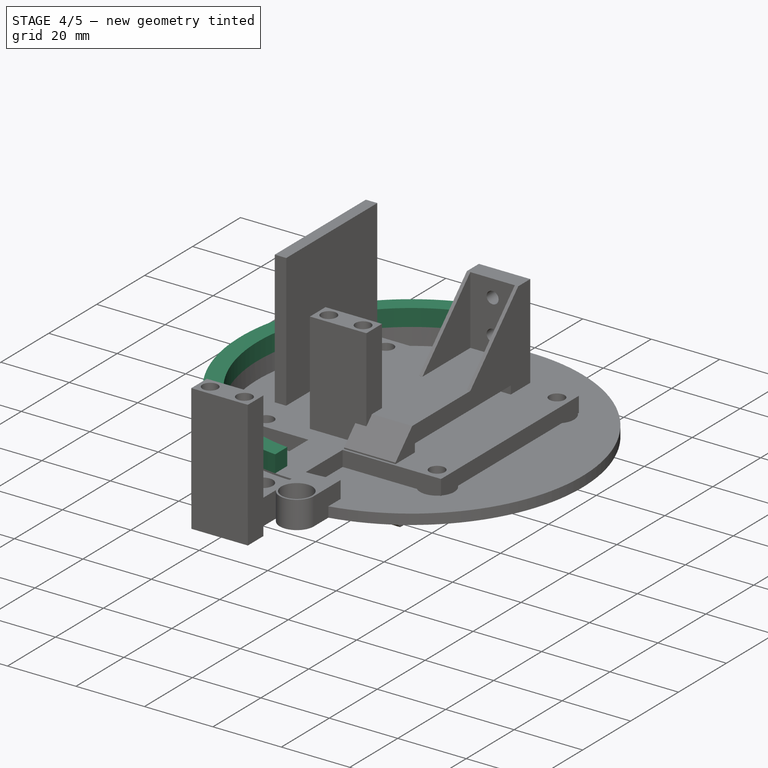
[diagram: stage 4 of 5 — iso view after this stage's code; geometry added in this stage tinted green]
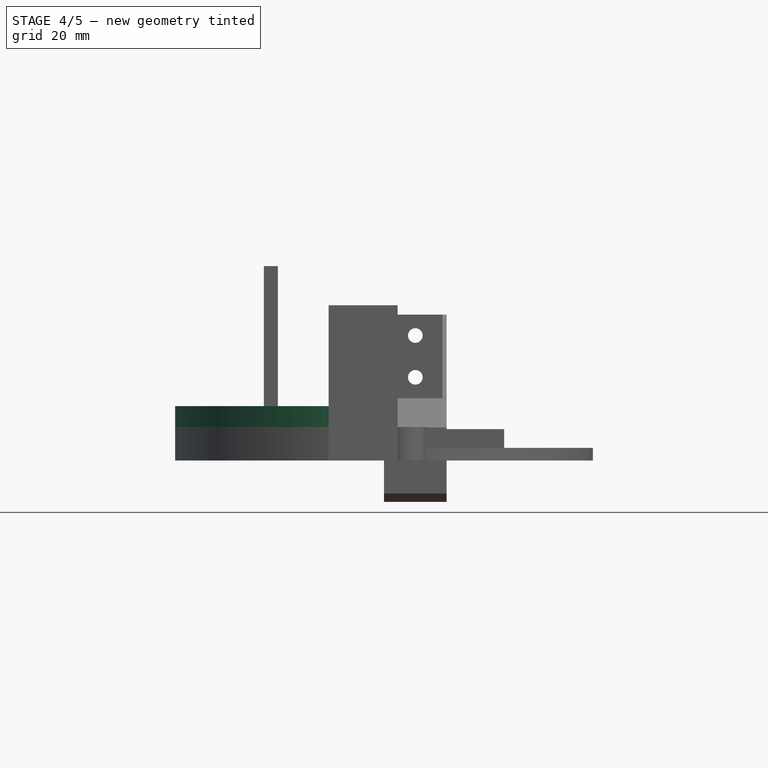
[diagram: stage 4 of 5 — front view after this stage's code; geometry added in this stage tinted green]
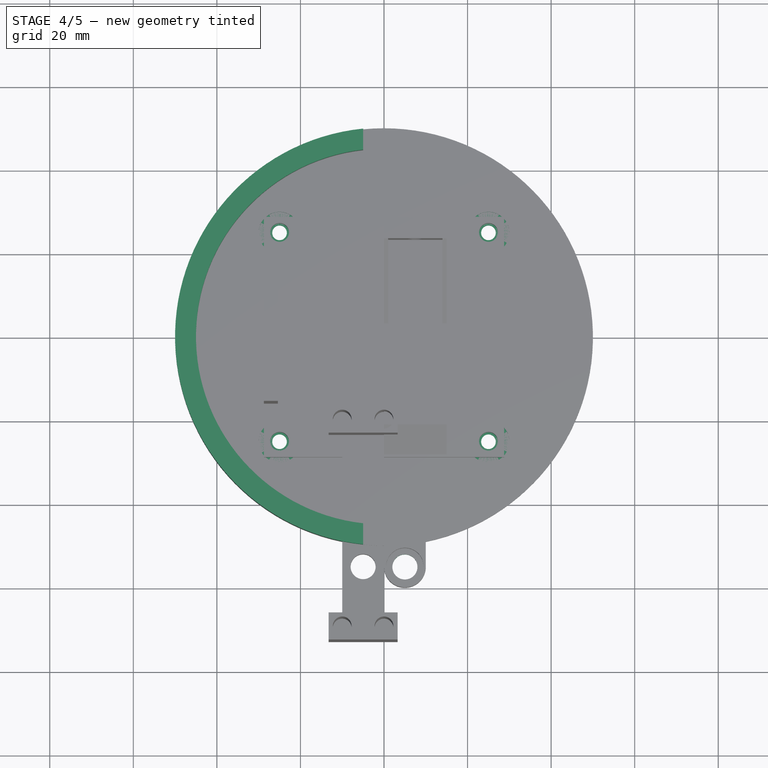
[diagram: stage 4 of 5 — top view after this stage's code; geometry added in this stage tinted green]
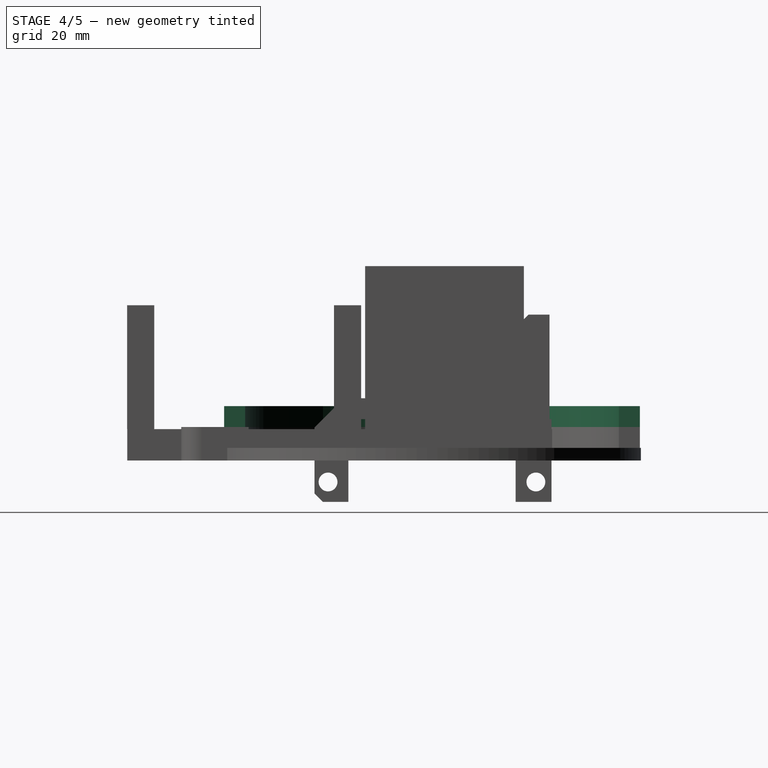
[diagram: stage 4 of 5 — right view after this stage's code; geometry added in this stage tinted green]
FEATURE [Sketcher::SketchObject] Sketch011  label="BaseAxleHoleSketch"
  FullyConstrained = true
  MapMode = 5
  Placement = pos=(0,0,3) rot=(0,0,1;0rad)
  Support = -> [Pocket001]
  sketch-geometry (7):
    g0: LineSegment StartX=0 StartY=0 StartZ=0 EndX=0 EndY=45 EndZ=0
    g1: LineSegment StartX=0 StartY=0 StartZ=0 EndX=0 EndY=-45 EndZ=0
    g2: LineSegment StartX=0 StartY=-45 StartZ=0 EndX=0 EndY=-55 EndZ=0
    g3: LineSegment StartX=0 StartY=-55 StartZ=0 EndX=5 EndY=-55 EndZ=0
    g4: LineSegment StartX=5 StartY=-55 StartZ=0 EndX=5 EndY=-58 EndZ=0
    g5: LineSegment StartX=5 StartY=-55 StartZ=0 EndX=5 EndY=-52 EndZ=0
    g6: Circle CenterX=5 CenterY=-55 CenterZ=0 NormalX=0 NormalY=0 NormalZ=1 AngleXU=0 Radius=3
  constraints (20):
    c: Coincident(g0,g-1)
    c: PointOnObject(g0,g-2)
    c: Coincident(g1,g0)
    c: PointOnObject(g1,g-2)
    c: Equal(g1,g0)
    c: Distance(g0,g1) = 90
    c: Coincident(g2,g1)
    c: PointOnObject(g2,g-2)
    c: Distance(g1,g2) = 10
    c: Coincident(g3,g2)
    c: Horizontal(g3)
    c: Distance(g2,g3) = 5
    c: Coincident(g4,g3)
    c: Vertical(g4)
    c: Coincident(g5,g3)
    c: Vertical(g5)
    c: Equal(g5,g4)
    c: Distance(g4,g5) = 6
    c: Coincident(g6,g3)
    c: PointOnObject(g5,g6)
FEATURE [PartDesign::Pocket] Pocket002  label="BaseAxleHole"
  BaseFeature = -> Pocket001
  Direction = (0,0,-1)
  Length = 3
  Length2 = 5
  Profile = -> Sketch011
  ReferenceAxis = -> Sketch011 [N_Axis]
  Type = 0
FEATURE [Sketcher::SketchObject] Sketch012  label="BaseThirdLayerSketch"
  FullyConstrained = true
  MapMode = 5
  Placement = pos=(0,0,8) rot=(0,0,1;0rad)
  Support = -> [Pocket002]
  sketch-geometry (16):
    g0: LineSegment StartX=0 StartY=0 StartZ=0 EndX=0 EndY=-45 EndZ=0
    g1: LineSegment StartX=0 StartY=0 StartZ=0 EndX=0 EndY=45 EndZ=0
    g2: LineSegment StartX=0 StartY=0 StartZ=0 EndX=-45 EndY=0 EndZ=0
    g3: LineSegment StartX=0 StartY=-45 StartZ=0 EndX=0 EndY=-50 EndZ=0
    g4: LineSegment StartX=-45 StartY=0 StartZ=0 EndX=-50 EndY=0 EndZ=0
    g5: LineSegment StartX=0 StartY=45 StartZ=0 EndX=0 EndY=50 EndZ=0
    g6: Circle CenterX=0 CenterY=0 CenterZ=0 NormalX=0 NormalY=0 NormalZ=1 AngleXU=0 Radius=45
    g7: Circle CenterX=0 CenterY=0 CenterZ=0 NormalX=0 NormalY=0 NormalZ=1 AngleXU=0 Radius=50
    g8: LineSegment StartX=0 StartY=50 StartZ=0 EndX=-5 EndY=50 EndZ=0
    g9: LineSegment StartX=0 StartY=-50 StartZ=0 EndX=-5 EndY=-50 EndZ=0
    g10: LineSegment StartX=-5 StartY=-50 StartZ=0 EndX=-5 EndY=-49.7494 EndZ=0
    g11: LineSegment StartX=-5 StartY=50 StartZ=0 EndX=-5 EndY=49.7494 EndZ=0
    g12: LineSegment StartX=-5 StartY=-49.7494 StartZ=0 EndX=-5 EndY=-44.7214 EndZ=0
    g13: LineSegment StartX=-5 StartY=49.7494 StartZ=0 EndX=-5 EndY=44.7214 EndZ=0
    g14: ArcOfCircle CenterX=-5.6e-15 CenterY=1.8e-15 CenterZ=0 NormalX=0 NormalY=0 NormalZ=1 AngleXU=0 Radius=45 StartAngle=1.68214 EndAngle=4.60105
    g15: ArcOfCircle CenterX=-2.2708e-12 CenterY=3.5e-15 CenterZ=0 NormalX=0 NormalY=0 NormalZ=1 AngleXU=0 Radius=50 StartAngle=1.67096 EndAngle=4.61222
  constraints (46):
    c: Coincident(g0,g-1)
    c: PointOnObject(g0,g-2)
    c: Coincident(g1,g0)
    c: PointOnObject(g1,g-2)
    c: Equal(g1,g0)
    c: Distance(g1,g0) = 90
    c: Coincident(g2,g0)
    c: PointOnObject(g2,g-1)
    c: Equal(g2,g1)
    c: Coincident(g3,g0)
    c: PointOnObject(g3,g-2)
    c: Distance(g0,g3) = 5
    c: Coincident(g4,g2)
    c: PointOnObject(g4,g-1)
    c: Equal(g4,g3)
    c: Coincident(g5,g1)
    c: PointOnObject(g5,g-2)
    c: Equal(g5,g3)
    c: Coincident(g6,g0)
    c: PointOnObject(g1,g6)
    c: Coincident(g7,g0)
    c: PointOnObject(g5,g7)
    c: Coincident(g8,g5)
    c: Horizontal(g8)
    c: Coincident(g9,g3)
    c: Horizontal(g9)
    c: Distance(g9,g3) = 5
    c: Equal(g9,g8)
    c: Coincident(g10,g9)
    c: PointOnObject(g10,g7)
    c: Vertical(g10)
    c: Coincident(g11,g8)
    c: PointOnObject(g11,g7)
    c: Vertical(g11)
    c: Coincident(g12,g10)
    c: PointOnObject(g12,g6)
    c: Vertical(g12)
    c: Coincident(g13,g11)
    c: PointOnObject(g13,g6)
    c: Vertical(g13)
    c: Coincident(g14,g13)
    c: Coincident(g14,g12)
    c: Tangent(g14,g6)
    c: Coincident(g15,g13)
    c: Coincident(g15,g12)
    c: Tangent(g15,g7)
FEATURE [PartDesign::Pad] Pad004  label="BaseThirdLayer"
  BaseFeature = -> Pocket002
  Direction = (0,0,1)
  Length = 5
  Length2 = 10
  Profile = -> Sketch012
  ReferenceAxis = -> Sketch012 [N_Axis]
  Type = 0
FEATURE [Part::Feature] Part__Feature001  label="A"
  shape: bbox 20.16 x 40.14 x 8.869 mm, 204 faces (baked)
FEATURE [Part::Feature] Part__Feature002  label="E"
  shape: bbox 20.15 x 40.15 x 20.11 mm, 289 faces (baked)
FEATURE [Part::Feature] Part__Feature003  label="C"
  shape: bbox 20.17 x 54 x 13.36 mm, 115 faces (baked)
FEATURE [Part::Feature] Part__Feature004  label="B"
  shape: bbox 9 x 9 x 4.4 mm, 7 faces (baked)
FEATURE [Part::Feature] Part__Feature005  label="D"
  Placement = pos=(0,-10.0526,-30.1) rot=(0,0,1;3.14159rad)
  shape: bbox 17.2 x 17.19 x 14.7 mm, 463 faces (baked)
FEATURE [App::Part] REV_Robotics_REV_41_1097  label="REV Robotics-REV-41-1097"
  Group = -> [Part__Feature001,Part__Feature002,Part__Feature003,Part__Feature004,Part__Feature005]
  Origin = -> Origin002
FEATURE [Part::Feature] Part__Feature006  label="REV Robotics-REV-41-1328"
  Placement = pos=(0,-10,-59) rot=(0,0,1;0rad)
  shape: bbox 13.5 x 13.5 x 19.16 mm, 167 faces (baked)
FEATURE [App::LinkGroup] LinkGroup  label="GripServo"
  ElementList = -> [REV_Robotics_REV_41_1097,Part__Feature006]
  LinkMode = 0
  Placement = pos=(5,-45,-66.5) rot=(0,1,0;3.14159rad)
FEATURE [Sketcher::SketchObject] Sketch013  label="BaseBoltInsetSketch"
  FullyConstrained = true
  MapMode = 5
  Placement = pos=(0,0,3) rot=(0,0,1;0rad)
  Support = -> [Pad004]
  sketch-geometry (15):
    g0: LineSegment StartX=0 StartY=0 StartZ=0 EndX=25 EndY=1e-16 EndZ=0
    g1: LineSegment StartX=0 StartY=0 StartZ=0 EndX=-25 EndY=1e-16 EndZ=0
    g2: LineSegment StartX=-25 StartY=1e-16 StartZ=0 EndX=-25 EndY=25 EndZ=0
    g3: LineSegment StartX=-25 StartY=1e-16 StartZ=0 EndX=-25 EndY=-25 EndZ=0
    g4: LineSegment StartX=25 StartY=1e-16 StartZ=0 EndX=25 EndY=-25 EndZ=0
    g5: LineSegment StartX=25 StartY=1e-16 StartZ=0 EndX=25 EndY=25 EndZ=0
    g6: LineSegment StartX=-25 StartY=25 StartZ=0 EndX=-20 EndY=25 EndZ=0
    g7: LineSegment StartX=-25 StartY=25 StartZ=0 EndX=-30 EndY=25 EndZ=0
    g8: Circle CenterX=-25 CenterY=25 CenterZ=0 NormalX=0 NormalY=0 NormalZ=1 AngleXU=0 Radius=5
    g9: LineSegment StartX=-25 StartY=-25 StartZ=0 EndX=-20 EndY=-25 EndZ=0
    g10: LineSegment StartX=25 StartY=-25 StartZ=0 EndX=30 EndY=-25 EndZ=0
    g11: LineSegment StartX=25 StartY=25 StartZ=0 EndX=30 EndY=25 EndZ=0
    g12: Circle CenterX=25 CenterY=-25 CenterZ=0 NormalX=0 NormalY=0 NormalZ=1 AngleXU=0 Radius=5
    g13: Circle CenterX=25 CenterY=25 CenterZ=0 NormalX=0 NormalY=0 NormalZ=1 AngleXU=0 Radius=5
    g14: Circle CenterX=-25 CenterY=-25 CenterZ=0 NormalX=0 NormalY=0 NormalZ=1 AngleXU=0 Radius=5
  constraints (41):
    c: Coincident(g0,g-1)
    c: PointOnObject(g0,g-1)
    c: Coincident(g1,g0)
    c: PointOnObject(g1,g-1)
    c: Equal(g1,g0)
    c: Distance(g1,g0) = 50
    c: Coincident(g2,g1)
    c: Vertical(g2)
    c: Equal(g2,g1)
    c: Coincident(g3,g1)
    c: Vertical(g3)
    c: Equal(g3,g1)
    c: Coincident(g4,g0)
    c: Vertical(g4)
    c: Equal(g4,g0)
    c: Coincident(g5,g0)
    c: Vertical(g5)
    c: Equal(g5,g0)
    c: Coincident(g6,g2)
    c: Horizontal(g6)
    c: Coincident(g7,g2)
    c: Horizontal(g7)
    c: Equal(g7,g6)
    c: Distance(g7,g6) = 10
    c: Coincident(g8,g2)
    c: PointOnObject(g6,g8)
    c: Coincident(g9,g3)
    c: Horizontal(g9)
    c: Equal(g9,g6)
    c: Coincident(g10,g4)
    c: Horizontal(g10)
    c: Equal(g10,g9)
    c: Coincident(g11,g5)
    c: Horizontal(g11)
    c: Equal(g11,g10)
    c: Coincident(g12,g4)
    c: PointOnObject(g10,g12)
    c: Coincident(g13,g5)
    c: PointOnObject(g11,g13)
    c: Coincident(g14,g3)
    c: PointOnObject(g9,g14)
FEATURE [PartDesign::Pocket] Pocket003  label="BaseBoltInset"
  BaseFeature = -> Pad004
  Direction = (0,0,-1)
  Length = 2
  Length2 = 5
  Profile = -> Sketch013
  ReferenceAxis = -> Sketch013 [N_Axis]
  Type = 0
FEATURE [PartDesign::Body] Body001  label="Grip"
  Group = -> [Sketch003,Sketch006,Pad002,Pad003,Sketch009,Pad009]
  Origin = -> Origin001
  Placement = pos=(0,0,8) rot=(0,0,1;0rad)
  Tip = -> Pad009
FEATURE [Part::Feature] Part__Feature007  label="REV-41-1097"
  Placement = pos=(-45,10,-1e-14) rot=(0,-1,0;1.5708rad)
  shape: bbox 43.92 x 54.01 x 20.18 mm, 1078 faces, 5 solids (baked)
FEATURE [Part::Feature] Part__Feature008  label="REV Robotics-REV-41-1363"
  Placement = pos=(0,0,0) rot=(0,0,1;1.5708rad)
  shape: bbox 6 x 38 x 38 mm, 38 faces (baked)
FEATURE [App::LinkGroup] LinkGroup001  label="RotationServo"
  ElementList = -> [Part__Feature007,Part__Feature008]
  LinkMode = 0
  Placement = pos=(25.4,3.00001,-27.5) rot=(0,0,1;0rad)
FEATURE [Sketcher::SketchObject] Sketch016  label="MountRotationServoSketch"
  FullyConstrained = true
  MapMode = 5
  Placement = pos=(0,0,7.5) rot=(0,0,1;0rad)
  Support = -> [Pad008]
  sketch-geometry (9):
    g0: LineSegment StartX=0 StartY=0 StartZ=0 EndX=-25.4 EndY=0 EndZ=0
    g1: LineSegment StartX=-25.4 StartY=0 StartZ=0 EndX=-25.4 EndY=3 EndZ=0
    g2: LineSegment StartX=-25.4 StartY=3 StartZ=0 EndX=0 EndY=3 EndZ=0
    g3: LineSegment StartX=0 StartY=3 StartZ=0 EndX=0 EndY=0 EndZ=0
    g4: LineSegment StartX=-25.4 StartY=3 StartZ=0 EndX=-25.4 EndY=22 EndZ=0
    g5: LineSegment StartX=-25.4 StartY=3 StartZ=0 EndX=-25.4 EndY=-16 EndZ=0
    g6: LineSegment StartX=-25.4 StartY=22 StartZ=0 EndX=-28.75 EndY=22 EndZ=0
    g7: LineSegment StartX=-25.4 StartY=-16 StartZ=0 EndX=-28.75 EndY=-16 EndZ=0
    g8: LineSegment StartX=-28.75 StartY=22 StartZ=0 EndX=-28.75 EndY=-16 EndZ=0
  constraints (25):
    c: Coincident(g0,g1)
    c: Coincident(g1,g2)
    c: Coincident(g2,g3)
    c: Coincident(g3,g0)
    c: Horizontal(g0)
    c: Horizontal(g2)
    c: Vertical(g1)
    c: Vertical(g3)
    c: Coincident(g0,g-1)
    c: Distance(g1,g2) = 25.4
    c: Distance(g1,g0) = 3
    c: Coincident(g4,g1)
    c: Vertical(g4)
    c: Coincident(g5,g4)
    c: Vertical(g5)
    c: Distance(g5,g4) = 38
    c: Equal(g5,g4)
    c: Coincident(g6,g4)
    c: Horizontal(g6)
    c: Distance(g6,g4) = 3.35
    c: Coincident(g7,g5)
    c: Horizontal(g7)
    c: Equal(g7,g6)
    c: Coincident(g8,g6)
    c: Coincident(g8,g7)
FEATURE [Sketcher::SketchObject] Sketch018  label="BaseBoltHolesSketch"
  FullyConstrained = true
  MapMode = 5
  Placement = pos=(0,0,1) rot=(0,0,1;0rad)
  Support = -> [Pocket003]
  expr: Constraints[5] = Sketch013.Constraints[5]
  sketch-geometry (15):
    g0: LineSegment StartX=0 StartY=0 StartZ=0 EndX=25 EndY=0 EndZ=0
    g1: LineSegment StartX=0 StartY=0 StartZ=0 EndX=-25 EndY=0 EndZ=0
    g2: LineSegment StartX=-25 StartY=0 StartZ=0 EndX=-25 EndY=25 EndZ=0
    g3: LineSegment StartX=-25 StartY=0 StartZ=0 EndX=-25 EndY=-25 EndZ=0
    g4: LineSegment StartX=25 StartY=0 StartZ=0 EndX=25 EndY=-25 EndZ=0
    g5: LineSegment StartX=25 StartY=0 StartZ=0 EndX=25 EndY=25 EndZ=0
    g6: LineSegment StartX=-25 StartY=25 StartZ=0 EndX=-23.25 EndY=25 EndZ=0
    g7: LineSegment StartX=-25 StartY=25 StartZ=0 EndX=-26.75 EndY=25 EndZ=0
    g8: Circle CenterX=-25 CenterY=25 CenterZ=0 NormalX=0 NormalY=0 NormalZ=1 AngleXU=0 Radius=1.75
    g9: LineSegment StartX=-25 StartY=-25 StartZ=0 EndX=-23.25 EndY=-25 EndZ=0
    g10: LineSegment StartX=25 StartY=-25 StartZ=0 EndX=26.75 EndY=-25 EndZ=0
    g11: LineSegment StartX=25 StartY=25 StartZ=0 EndX=26.75 EndY=25 EndZ=0
    g12: Circle CenterX=25 CenterY=-25 CenterZ=0 NormalX=0 NormalY=0 NormalZ=1 AngleXU=0 Radius=1.75
    g13: Circle CenterX=25 CenterY=25 CenterZ=0 NormalX=0 NormalY=0 NormalZ=1 AngleXU=0 Radius=1.75
    g14: Circle CenterX=-25 CenterY=-25 CenterZ=0 NormalX=0 NormalY=0 NormalZ=1 AngleXU=0 Radius=1.75
  constraints (41):
    c: Coincident(g0,g-1)
    c: PointOnObject(g0,g-1)
    c: Coincident(g1,g0)
    c: PointOnObject(g1,g-1)
    c: Equal(g1,g0)
    c: Distance(g1,g0) = 50
    c: Coincident(g2,g1)
    c: Vertical(g2)
    c: Equal(g2,g1)
    c: Coincident(g3,g1)
    c: Vertical(g3)
    c: Equal(g3,g1)
    c: Coincident(g4,g0)
    c: Vertical(g4)
    c: Equal(g4,g0)
    c: Coincident(g5,g0)
    c: Vertical(g5)
    c: Equal(g5,g0)
    c: Coincident(g6,g2)
    c: Horizontal(g6)
    c: Coincident(g7,g2)
    c: Horizontal(g7)
    c: Equal(g7,g6)
    c: Distance(g7,g6) = 3.5
    c: Coincident(g8,g2)
    c: PointOnObject(g6,g8)
    c: Coincident(g9,g3)
    c: Horizontal(g9)
    c: Equal(g9,g6)
    c: Coincident(g10,g4)
    c: Horizontal(g10)
    c: Equal(g10,g9)
    c: Coincident(g11,g5)
    c: Horizontal(g11)
    c: Equal(g11,g10)
    c: Coincident(g12,g4)
    c: PointOnObject(g10,g12)
    c: Coincident(g13,g5)
    c: PointOnObject(g11,g13)
    c: Coincident(g14,g3)
    c: PointOnObject(g9,g14)
FEATURE [PartDesign::Pocket] Pocket004  label="BaseBoltHoles"
  BaseFeature = -> Pocket003
  Direction = (0,0,-1)
  Length = 1
  Length2 = 5
  Profile = -> Sketch018
  ReferenceAxis = -> Sketch018 [N_Axis]
  Type = 0
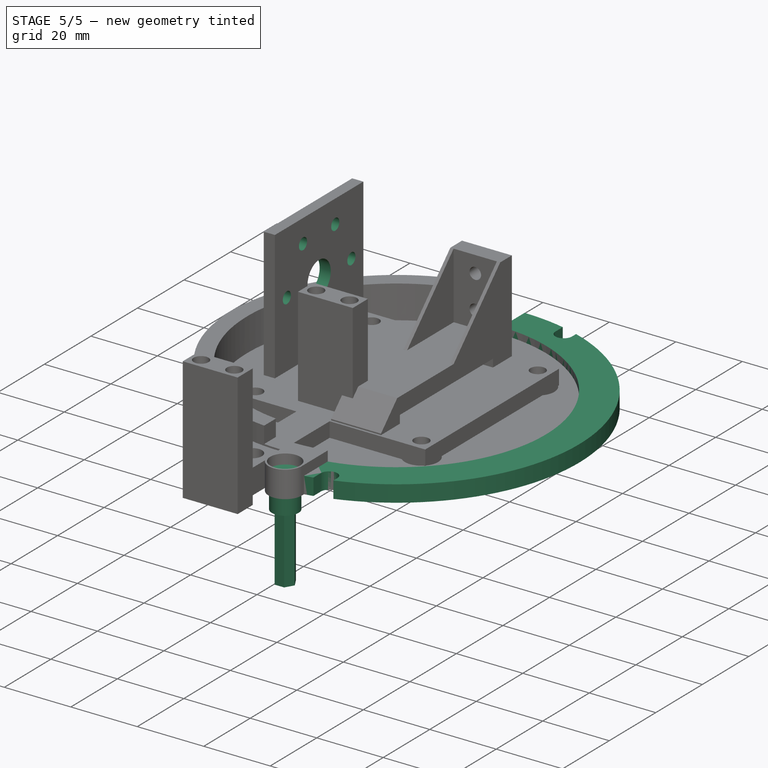
[diagram: stage 5 of 5 — iso view after this stage's code; geometry added in this stage tinted green]
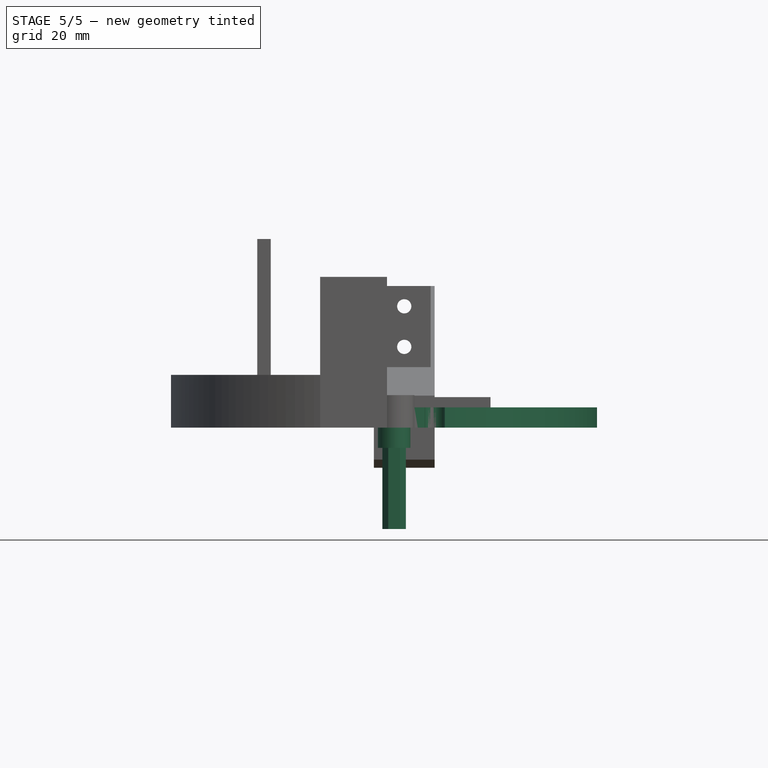
[diagram: stage 5 of 5 — front view after this stage's code; geometry added in this stage tinted green]
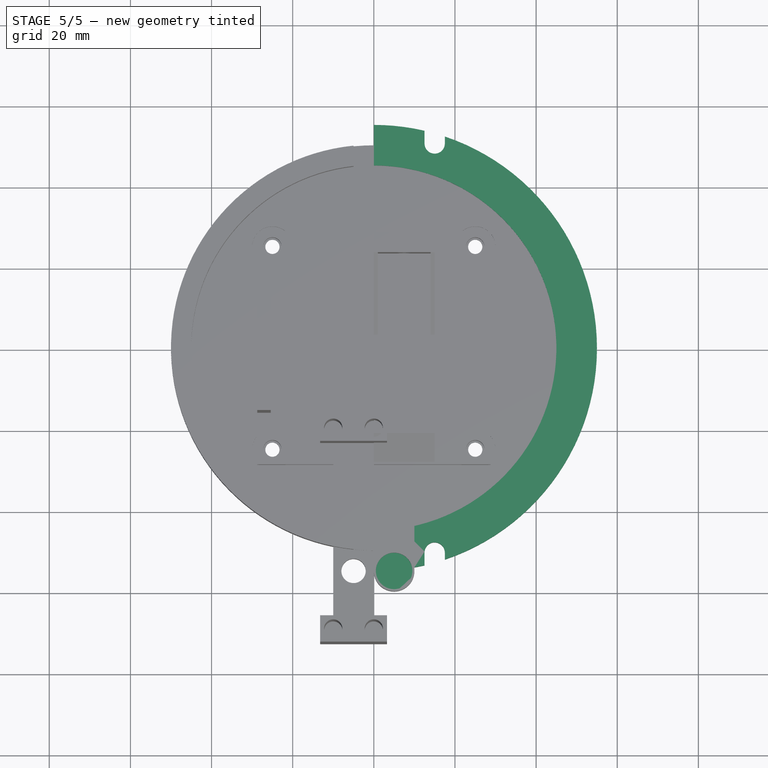
[diagram: stage 5 of 5 — top view after this stage's code; geometry added in this stage tinted green]
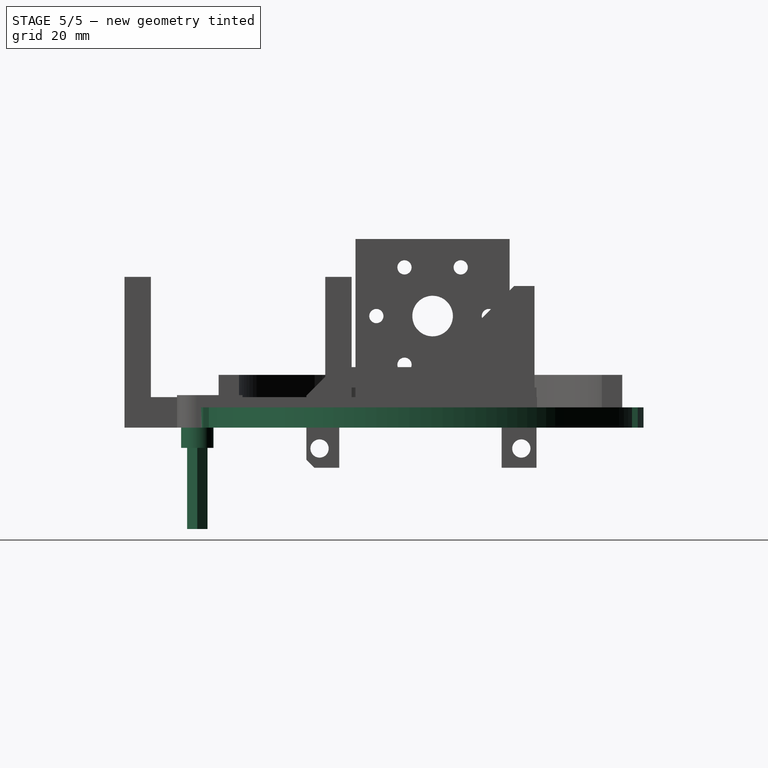
[diagram: stage 5 of 5 — right view after this stage's code; geometry added in this stage tinted green]
FEATURE [Sketcher::SketchObject] Sketch003  label="GripBaseSketch"
  FullyConstrained = true
  MapMode = 5
  Support = -> [XY_Plane001]
  sketch-geometry (37):
    g0: LineSegment StartX=0 StartY=0 StartZ=0 EndX=45 EndY=0 EndZ=0
    g1: LineSegment StartX=0 StartY=0 StartZ=0 EndX=-45 EndY=0 EndZ=0
    g2: LineSegment StartX=45 StartY=0 StartZ=0 EndX=55 EndY=0 EndZ=0
    g3: LineSegment StartX=0 StartY=0 StartZ=0 EndX=0 EndY=-45 EndZ=0
    g4: LineSegment StartX=0 StartY=0 StartZ=0 EndX=0 EndY=45 EndZ=0
    g5: ArcOfCircle CenterX=-4e-16 CenterY=3e-16 CenterZ=0 NormalX=0 NormalY=0 NormalZ=1 AngleXU=0 Radius=45 StartAngle=4.71239 EndAngle=7.85398
    g6: LineSegment StartX=0 StartY=45 StartZ=0 EndX=-1.2e-15 EndY=55 EndZ=0
    g7: LineSegment StartX=0 StartY=-45 StartZ=0 EndX=0 EndY=-55 EndZ=0
    g8: ArcOfCircle CenterX=1.5e-15 CenterY=-9e-16 CenterZ=0 NormalX=0 NormalY=0 NormalZ=1 AngleXU=0 Radius=55 StartAngle=4.71239 EndAngle=7.85398
    g9: LineSegment StartX=55 StartY=0 StartZ=0 EndX=55 EndY=-45 EndZ=0
    g10: LineSegment StartX=55 StartY=-45 StartZ=0 EndX=55 EndY=-55 EndZ=0
    g11: LineSegment StartX=-1.2e-15 StartY=55 StartZ=0 EndX=15 EndY=55 EndZ=0
    g12: LineSegment StartX=15 StartY=55 StartZ=0 EndX=15 EndY=52.915 EndZ=0
    g13: LineSegment StartX=15 StartY=52.915 StartZ=0 EndX=15 EndY=50.415 EndZ=0
    g14: LineSegment StartX=15 StartY=50.415 StartZ=0 EndX=12.5 EndY=50.415 EndZ=0
    g15: LineSegment StartX=15 StartY=50.415 StartZ=0 EndX=17.5 EndY=50.415 EndZ=0
    g16: LineSegment StartX=15 StartY=50.415 StartZ=0 EndX=15 EndY=47.915 EndZ=0
    g17: ArcOfCircle CenterX=15 CenterY=50.415 CenterZ=0 NormalX=0 NormalY=0 NormalZ=1 AngleXU=0 Radius=2.5 StartAngle=3.14159 EndAngle=6.28319
    g18: LineSegment StartX=12.5 StartY=50.415 StartZ=0 EndX=12.5 EndY=53.5607 EndZ=0
    g19: LineSegment StartX=17.5 StartY=50.415 StartZ=0 EndX=17.5 EndY=52.1416 EndZ=0
    g20: ArcOfCircle CenterX=1.99e-14 CenterY=-2.85e-14 CenterZ=0 NormalX=0 NormalY=0 NormalZ=1 AngleXU=0 Radius=55 StartAngle=1.34152 EndAngle=1.5708
    g21: LineSegment StartX=0 StartY=-55 StartZ=0 EndX=5 EndY=-55 EndZ=0
    g22: LineSegment StartX=5 StartY=-55 StartZ=0 EndX=10 EndY=-55 EndZ=0
    g23: LineSegment StartX=10 StartY=-55 StartZ=0 EndX=15 EndY=-55 EndZ=0
    g24: LineSegment StartX=15 StartY=-55 StartZ=0 EndX=15 EndY=-52.915 EndZ=0
    g25: LineSegment StartX=15 StartY=-52.915 StartZ=0 EndX=15 EndY=-50.415 EndZ=0
    g26: LineSegment StartX=15 StartY=-50.415 StartZ=0 EndX=12.5 EndY=-50.415 EndZ=0
    g27: LineSegment StartX=15 StartY=-50.415 StartZ=0 EndX=17.5 EndY=-50.415 EndZ=0
    g28: LineSegment StartX=15 StartY=-50.415 StartZ=0 EndX=15 EndY=-47.915 EndZ=0
    g29: LineSegment StartX=12.5 StartY=-50.415 StartZ=0 EndX=12.5 EndY=-53.5607 EndZ=0
    g30: LineSegment StartX=17.5 StartY=-50.415 StartZ=0 EndX=17.5 EndY=-52.1416 EndZ=0
    g31: ArcOfCircle CenterX=15 CenterY=-50.415 CenterZ=0 NormalX=0 NormalY=0 NormalZ=1 AngleXU=0 Radius=2.5 StartAngle=-9e-16 EndAngle=3.14159
    g32: LineSegment StartX=5 StartY=-55 StartZ=0 EndX=5 EndY=-60 EndZ=0
    g33: ArcOfCircle CenterX=5 CenterY=-55 CenterZ=0 NormalX=0 NormalY=0 NormalZ=1 AngleXU=0 Radius=5 StartAngle=3.14159 EndAngle=6.28319
    g34: LineSegment StartX=10 StartY=-55 StartZ=0 EndX=10 EndY=-54.0833 EndZ=0
    g35: ArcOfCircle CenterX=3.1e-15 CenterY=1.817e-13 CenterZ=0 NormalX=0 NormalY=0 NormalZ=1 AngleXU=0 Radius=55 StartAngle=4.89522 EndAngle=4.94167
    g36: ArcOfCircle CenterX=-2.2e-15 CenterY=-2.1e-15 CenterZ=0 NormalX=0 NormalY=0 NormalZ=1 AngleXU=0 Radius=55 StartAngle=5.0362 EndAngle=7.53017
  constraints (111):
    c: Coincident(g0,g-1)
    c: PointOnObject(g0,g-1)
    c: Coincident(g1,g0)
    c: PointOnObject(g1,g-1)
    c: Equal(g1,g0)
    c: Distance(g1,g0) = 90
    c: Coincident(g2,g0)
    c: PointOnObject(g2,g-1)
    c: Distance(g0,g2) = 10
    c: Coincident(g3,g0)
    c: PointOnObject(g3,g-2)
    c: Equal(g3,g0)
    c: Coincident(g4,g0)
    c: PointOnObject(g4,g-2)
    c: Equal(g4,g0)
    c: Coincident(g5,g4)
    c: Coincident(g5,g3)
    c: PointOnObject(g0,g5)
    c: Coincident(g6,g5)
    c: PointOnObject(g6,g-2)
    c: Equal(g6,g2)
    c: Coincident(g7,g5)
    c: PointOnObject(g7,g-2)
    c: Equal(g7,g2)
    c: Coincident(g8,g6)
    c: Coincident(g8,g7)
    c: PointOnObject(g2,g8)
    c: Coincident(g9,g2)
    c: Vertical(g9)
    c: Equal(g9,g3)
    c: Coincident(g10,g9)
    c: Vertical(g10)
    c: Equal(g10,g7)
    c: Coincident(g11,g6)
    c: Horizontal(g11)
    c: Distance(g6,g11) = 15
    c: Coincident(g12,g11)
    c: PointOnObject(g12,g8)
    c: Vertical(g12)
    c: Coincident(g13,g12)
    c: Vertical(g13)
    c: Coincident(g14,g13)
    c: Horizontal(g14)
    c: Coincident(g15,g13)
    c: Horizontal(g15)
    c: Coincident(g16,g13)
    c: Vertical(g16)
    c: Equal(g16,g13)
    c: Equal(g15,g13)
    c: Equal(g14,g13)
    c: Coincident(g17,g14)
    c: Coincident(g17,g15)
    c: PointOnObject(g16,g17)
    c: Coincident(g18,g17)
    c: PointOnObject(g18,g8)
    c: Vertical(g18)
    c: Coincident(g19,g17)
    c: PointOnObject(g19,g8)
    c: Vertical(g19)
    c: Coincident(g20,g6)
    c: Coincident(g20,g18)
    c: Tangent(g20,g8)
    c: Coincident(g21,g7)
    c: Horizontal(g21)
    c: Coincident(g22,g21)
    c: Horizontal(g22)
    c: Equal(g21,g22)
    c: Distance(g21,g7) = 5
    c: Coincident(g23,g22)
    c: Horizontal(g23)
    c: Distance(g22,g23) = 5
    c: Coincident(g24,g23)
    c: PointOnObject(g24,g8)
    c: Vertical(g24)
    c: Coincident(g25,g24)
    c: Vertical(g25)
    c: Distance(g24,g25) = 2.5
    c: Coincident(g26,g25)
    c: Horizontal(g26)
    c: Coincident(g27,g25)
    c: Horizontal(g27)
    c: Coincident(g28,g25)
    c: Vertical(g28)
    c: Equal(g28,g25)
    c: Equal(g27,g25)
    c: Equal(g26,g25)
    c: Coincident(g29,g26)
    c: PointOnObject(g29,g8)
    c: Vertical(g29)
    c: Coincident(g30,g27)
    c: PointOnObject(g30,g8)
    c: Vertical(g30)
    c: Coincident(g31,g29)
    c: Coincident(g31,g30)
    c: PointOnObject(g28,g31)
    c: Equal(g13,g25)
    c: Coincident(g32,g21)
    c: Vertical(g32)
    c: Equal(g32,g21)
    c: Coincident(g33,g7)
    c: Coincident(g33,g22)
    c: PointOnObject(g32,g33)
    c: Coincident(g34,g33)
    c: PointOnObject(g34,g8)
    c: Vertical(g34)
    c: Coincident(g35,g34)
    c: Coincident(g35,g29)
    c: Tangent(g35,g8)
    c: Coincident(g36,g30)
    c: Coincident(g36,g19)
    c: Tangent(g36,g8)
FEATURE [Part::Feature] Part__Feature  label="Pixel"
  Placement = pos=(0,2e-15,9) rot=(1,0,0;1.5708rad)
  shape: bbox 85.28 x 76.24 x 12.78 mm, 158 faces (baked)
FEATURE [PartDesign::Pad] Pad002  label="GripBase"
  Direction = (0,0,1)
  Length = 5
  Length2 = 10
  Profile = -> Sketch003
  ReferenceAxis = -> Sketch003 [N_Axis]
  Type = 0
FEATURE [Sketcher::SketchObject] Sketch006  label="GripProtrusionSketch"
  FullyConstrained = true
  MapMode = 5
  Placement = pos=(0,0,0) rot=(1,0,0;3.14159rad)
  Support = -> [Pad002]
  sketch-geometry (6):
    g0: LineSegment StartX=0 StartY=0 StartZ=0 EndX=0 EndY=-45 EndZ=0
    g1: LineSegment StartX=0 StartY=0 StartZ=0 EndX=0 EndY=45 EndZ=0
    g2: LineSegment StartX=0 StartY=45 StartZ=0 EndX=0 EndY=55 EndZ=0
    g3: LineSegment StartX=0 StartY=55 StartZ=0 EndX=5 EndY=55 EndZ=0
    g4: LineSegment StartX=5 StartY=55 StartZ=0 EndX=9 EndY=55 EndZ=0
    g5: Circle CenterX=5 CenterY=55 CenterZ=0 NormalX=0 NormalY=0 NormalZ=1 AngleXU=0 Radius=4
  constraints (17):
    c: Coincident(g0,g-1)
    c: PointOnObject(g0,g-2)
    c: Coincident(g1,g0)
    c: PointOnObject(g1,g-2)
    c: Distance(g1,g0) = 90
    c: Equal(g1,g0)
    c: Coincident(g2,g1)
    c: PointOnObject(g2,g-2)
    c: Distance(g1,g2) = 10
    c: Coincident(g3,g2)
    c: Horizontal(g3)
    c: Distance(g2,g3) = 5
    c: Coincident(g4,g3)
    c: Horizontal(g4)
    c: Distance(g3,g4) = 4
    c: Coincident(g5,g3)
    c: PointOnObject(g4,g5)
FEATURE [PartDesign::Pad] Pad003  label="GripProtrusion"
  BaseFeature = -> Pad002
  Direction = (0,0,-1)
  Length = 5
  Length2 = 10
  Profile = -> Sketch006
  ReferenceAxis = -> Sketch006 [N_Axis]
  Type = 0
FEATURE [PartDesign::Pad] Pad009  label="GripAxle"
  BaseFeature = -> Pad003
  Direction = (0,0,-1)
  Length = 20
  Length2 = 10
  Profile = -> Sketch009
  ReferenceAxis = -> Sketch009 [N_Axis]
  Type = 0
FEATURE [Sketcher::SketchObject] Sketch017  label="MountRotationServoHolesSketch"
  FullyConstrained = true
  MapMode = 5
  Placement = pos=(-28.75,0,0) rot=(0.57735,-0.57735,-0.57735;2.0944rad)
  Support = -> [Pad010]
  sketch-geometry (30):
    g0: LineSegment StartX=0 StartY=0 StartZ=0 EndX=0 EndY=8.5 EndZ=0
    g1: LineSegment StartX=0 StartY=8.5 StartZ=0 EndX=-3 EndY=8.5 EndZ=0
    g2: LineSegment StartX=-3 StartY=8.5 StartZ=0 EndX=-3 EndY=27.5 EndZ=0
    g3: LineSegment StartX=-3 StartY=27.5 StartZ=0 EndX=-3 EndY=46.5 EndZ=0
    g4: LineSegment StartX=-3 StartY=27.5 StartZ=0 EndX=-8 EndY=27.5 EndZ=0
    g5: LineSegment StartX=-3 StartY=27.5 StartZ=0 EndX=2 EndY=27.5 EndZ=0
    g6: Circle CenterX=-3 CenterY=27.5 CenterZ=0 NormalX=0 NormalY=0 NormalZ=1 AngleXU=0 Radius=5
    g7: LineSegment StartX=2 StartY=27.5 StartZ=0 EndX=3.93 EndY=27.5 EndZ=0
    g8: LineSegment StartX=-8 StartY=27.5 StartZ=0 EndX=-9.93 EndY=27.5 EndZ=0
    g9: LineSegment StartX=3.93 StartY=27.5 StartZ=0 EndX=3.93 EndY=39.5 EndZ=0
    g10: LineSegment StartX=3.93 StartY=27.5 StartZ=0 EndX=3.93 EndY=15.5 EndZ=0
    g11: LineSegment StartX=-9.93 StartY=27.5 StartZ=0 EndX=-9.93 EndY=39.5 EndZ=0
    g12: LineSegment StartX=-9.93 StartY=27.5 StartZ=0 EndX=-9.93 EndY=15.5 EndZ=0
    g13: LineSegment StartX=3.93 StartY=39.5 StartZ=0 EndX=2.18 EndY=39.5 EndZ=0
    g14: LineSegment StartX=3.93 StartY=39.5 StartZ=0 EndX=5.68 EndY=39.5 EndZ=0
    g15: Circle CenterX=3.93 CenterY=39.5 CenterZ=0 NormalX=0 NormalY=0 NormalZ=1 AngleXU=0 Radius=1.75
    g16: LineSegment StartX=-9.93 StartY=39.5 StartZ=0 EndX=-8.18 EndY=39.5 EndZ=0
    g17: Circle CenterX=-9.93 CenterY=39.5 CenterZ=0 NormalX=0 NormalY=0 NormalZ=1 AngleXU=0 Radius=1.75
    g18: LineSegment StartX=-9.93 StartY=15.5 StartZ=0 EndX=-8.18 EndY=15.5 EndZ=0
    g19: LineSegment StartX=3.93 StartY=15.5 StartZ=0 EndX=5.68 EndY=15.5 EndZ=0
    g20: Circle CenterX=-9.93 CenterY=15.5 CenterZ=0 NormalX=0 NormalY=0 NormalZ=1 AngleXU=0 Radius=1.75
    g21: Circle CenterX=3.93 CenterY=15.5 CenterZ=0 NormalX=0 NormalY=0 NormalZ=1 AngleXU=0 Radius=1.75
    g22: LineSegment StartX=3.93 StartY=27.5 StartZ=0 EndX=10.8654 EndY=27.5 EndZ=0
    g23: LineSegment StartX=3.93 StartY=39.5 StartZ=0 EndX=10.8654 EndY=27.5 EndZ=0
    g24: LineSegment StartX=-9.93 StartY=27.5 StartZ=0 EndX=-16.8654 EndY=27.5 EndZ=0
    g25: LineSegment StartX=-9.93 StartY=15.5 StartZ=0 EndX=-16.8654 EndY=27.5 EndZ=0
    g26: LineSegment StartX=-16.8654 StartY=27.5 StartZ=0 EndX=-16.8654 EndY=29.25 EndZ=0
    g27: LineSegment StartX=10.8654 StartY=27.5 StartZ=0 EndX=10.8654 EndY=25.75 EndZ=0
    g28: Circle CenterX=-16.8654 CenterY=27.5 CenterZ=0 NormalX=0 NormalY=0 NormalZ=1 AngleXU=0 Radius=1.75
    g29: Circle CenterX=10.8654 CenterY=27.5 CenterZ=0 NormalX=0 NormalY=0 NormalZ=1 AngleXU=0 Radius=1.75
  constraints (81):
    c: Coincident(g0,g-1)
    c: PointOnObject(g0,g-2)
    c: Distance(g0,g0) = 8.5
    c: Coincident(g1,g0)
    c: Horizontal(g1)
    c: Distance(g1,g0) = 3
    c: Coincident(g2,g1)
    c: Vertical(g2)
    c: Coincident(g3,g2)
    c: Vertical(g3)
    c: Equal(g3,g2)
    c: Distance(g3,g1) = 38
    c: Coincident(g4,g2)
    c: Horizontal(g4)
    c: Coincident(g5,g2)
    c: Horizontal(g5)
    c: Distance(g4,g5) = 10
    c: Equal(g4,g5)
    c: Coincident(g6,g2)
    c: PointOnObject(g5,g6)
    c: Coincident(g7,g5)
    c: Horizontal(g7)
    c: Coincident(g8,g4)
    c: Horizontal(g8)
    c: Equal(g8,g7)
    c: Distance(g8,g7) = 13.86
    c: Coincident(g9,g7)
    c: Vertical(g9)
    c: Coincident(g10,g7)
    c: Vertical(g10)
    c: Equal(g10,g9)
    c: Distance(g9,g10) = 24
    c: Coincident(g11,g8)
    c: Vertical(g11)
    c: Coincident(g12,g8)
    c: Vertical(g12)
    c: Equal(g12,g10)
    c: Equal(g11,g9)
    c: Coincident(g13,g9)
    c: Horizontal(g13)
    c: Coincident(g14,g9)
    c: Horizontal(g14)
    c: Equal(g14,g13)
    c: Distance(g13,g14) = 3.5
    c: Coincident(g15,g9)
    c: PointOnObject(g14,g15)
    c: Coincident(g16,g11)
    c: Horizontal(g16)
    c: Equal(g16,g13)
    c: Coincident(g17,g11)
    c: PointOnObject(g16,g17)
    c: Coincident(g18,g12)
    c: Horizontal(g18)
    c: Equal(g18,g14)
    c: Coincident(g19,g10)
    c: Horizontal(g19)
    c: Equal(g19,g14)
    c: Coincident(g20,g12)
    c: PointOnObject(g18,g20)
    c: Coincident(g21,g10)
    c: PointOnObject(g19,g21)
    c: Coincident(g22,g7)
    c: Horizontal(g22)
    c: Coincident(g23,g15)
    c: Coincident(g23,g22)
    c: Distance(g15,g22) = 13.86
    c: Coincident(g24,g8)
    c: Horizontal(g24)
    c: Coincident(g25,g20)
    c: Coincident(g25,g24)
    c: Equal(g25,g23)
    c: Coincident(g26,g24)
    c: Vertical(g26)
    c: Equal(g26,g16)
    c: Coincident(g27,g22)
    c: Vertical(g27)
    c: Equal(g27,g19)
    c: Coincident(g28,g24)
    c: PointOnObject(g26,g28)
    c: Coincident(g29,g22)
    c: PointOnObject(g27,g29)
FEATURE [PartDesign::Pocket] Pocket  label="MountRotationServoHoles"
  BaseFeature = -> Pad010
  Direction = (1,0,0)
  Length = 5
  Length2 = 5
  Profile = -> Sketch017
  ReferenceAxis = -> Sketch017 [N_Axis]
  Type = 0
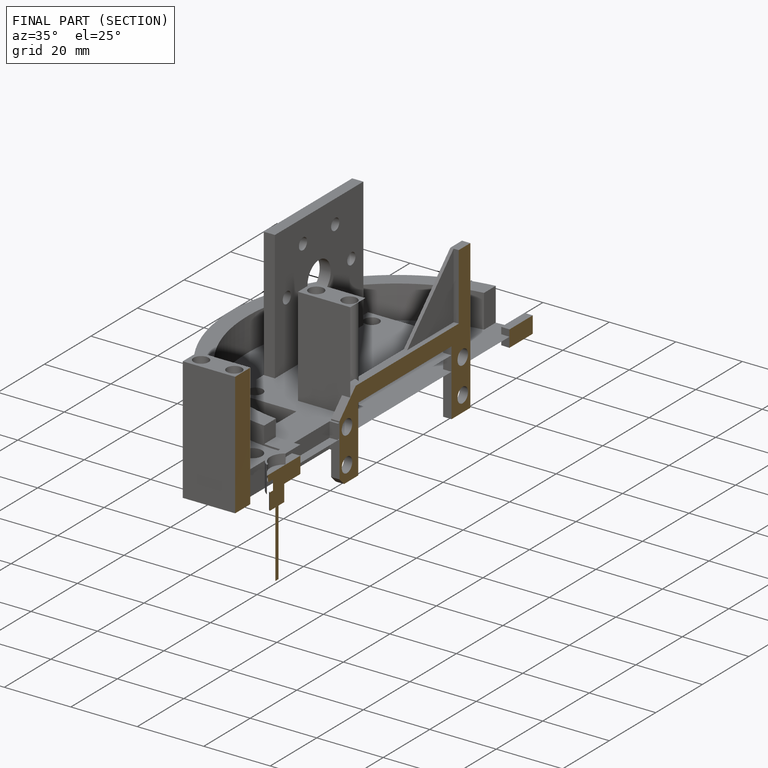
[diagram: finished part — half-section view (interior)]
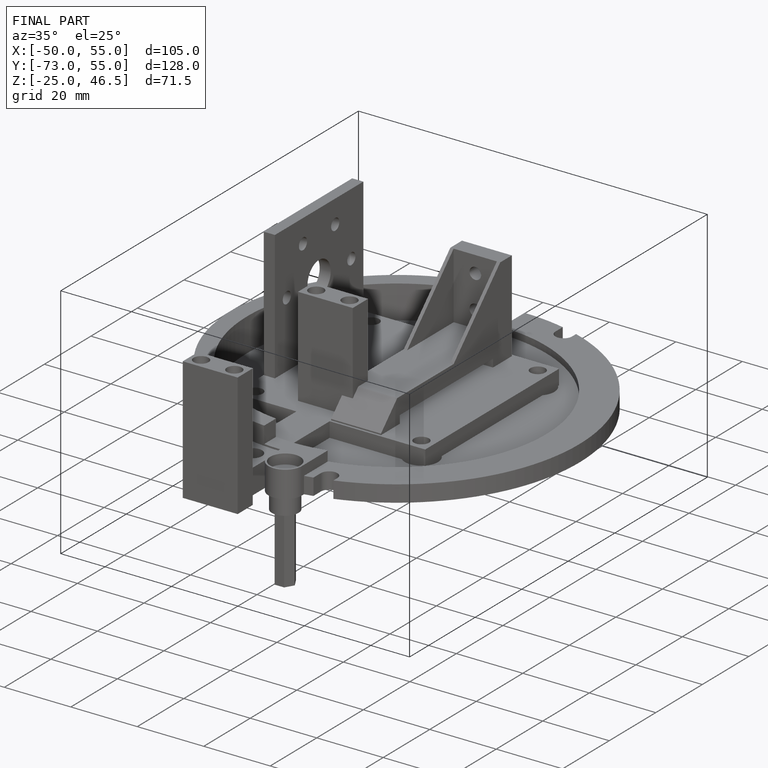
[diagram: finished part — iso view with bounding-box wireframe]
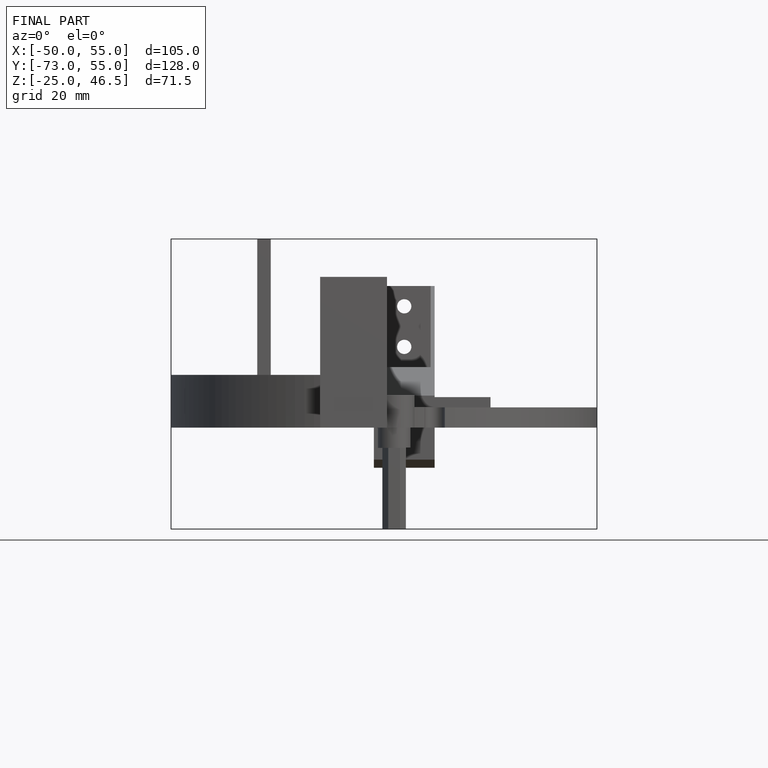
[diagram: finished part — front view with bounding-box wireframe]
